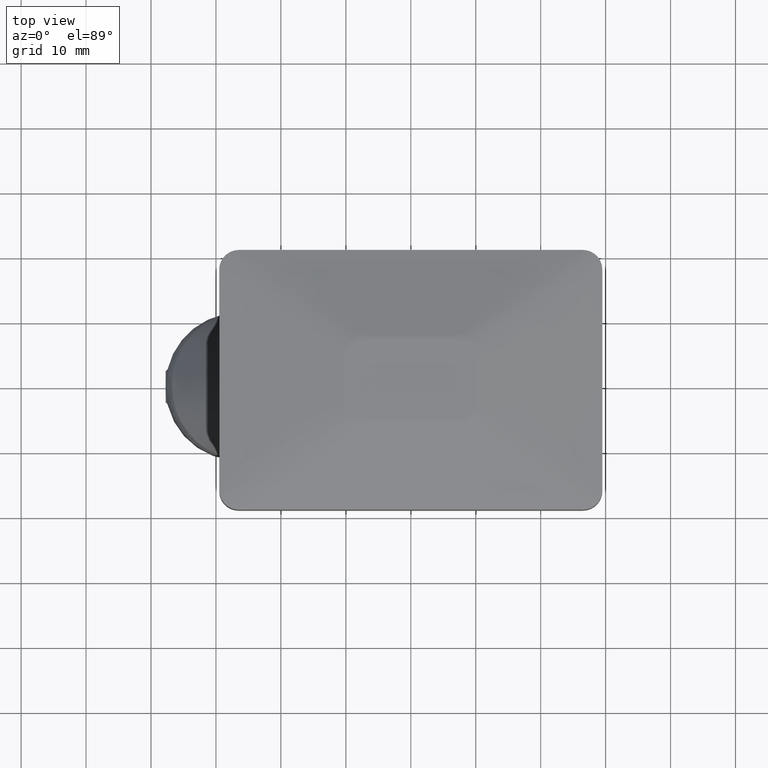
[diagram: clean part render]
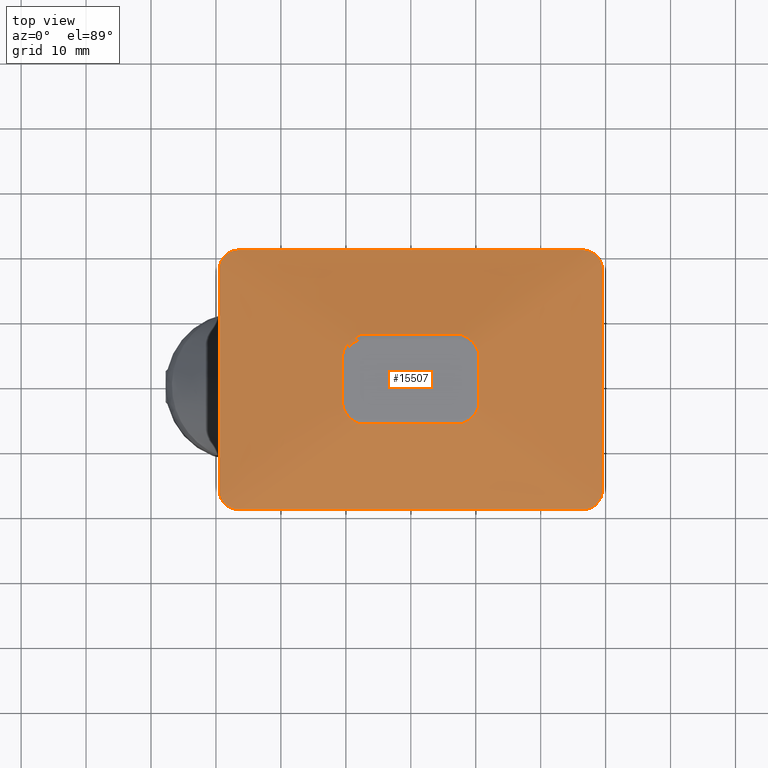
[diagram: same view with one face highlighted and labeled with its STEP entity id]
A machine part, top view. The second image highlights one B-rep face of the part: STEP entity #15507.
In plain terms, the highlighted face is a freeform B-spline surface patch.
Its self-contained STEP definition (entity closure, byte-faithful):
#20 = CARTESIAN_POINT ( 'NONE',  ( 10.51614648335154278, 3.500000000015542234, 13.95160973029972062 ) ) ;
#35 = CARTESIAN_POINT ( 'NONE',  ( 27.58535312371454395, 19.80070961837484234, 10.50000000000000888 ) ) ;
#59 = CARTESIAN_POINT ( 'NONE',  ( -10.51614648335155877, -3.686648182740845936, 13.95160973029972240 ) ) ;
#100 = CARTESIAN_POINT ( 'NONE',  ( 13.94038235332103071, 20.00000000000001421, 10.49999999999999822 ) ) ;
#160 = CARTESIAN_POINT ( 'NONE',  ( 28.02904328190679806, 19.82568928839145883, 10.46499999999999986 ) ) ;
#193 = CARTESIAN_POINT ( 'NONE',  ( 29.49999999999999645, -16.99999999999998934, 10.50000000000000000 ) ) ;
#199 = ORIENTED_EDGE ( 'NONE', *, *, #15789, .T. ) ;
#222 = CARTESIAN_POINT ( 'NONE',  ( -28.02904328190670924, 19.82568928839145883, 10.46499999999999098 ) ) ;
#260 = LINE ( 'NONE', #8026, #1119 ) ;
#286 = CARTESIAN_POINT ( 'NONE',  ( 29.65828521052497280, 17.62243977793708183, 10.46500000000002828 ) ) ;
#331 = CARTESIAN_POINT ( 'NONE',  ( 28.00533753672261739, 19.60246378587305571, 10.49997073623414856 ) ) ;
#341 = CARTESIAN_POINT ( 'NONE',  ( 29.39104710402942189, 17.82689361139919981, 10.49999999999996625 ) ) ;
#386 = CARTESIAN_POINT ( 'NONE',  ( 27.83084604247082794, 19.69573359957927394, 10.49998300734240431 ) ) ;
#557 = ORIENTED_EDGE ( 'NONE', *, *, #11233, .T. ) ;
#591 = CARTESIAN_POINT ( 'NONE',  ( -29.49999999999999645, 20.00000000000000355, 10.50000000000000000 ) ) ;
#627 = CARTESIAN_POINT ( 'NONE',  ( -29.49999999999998224, -17.19808138155498156, 10.50000000000000355 ) ) ;
#633 = CARTESIAN_POINT ( 'NONE',  ( 29.69250000000003809, -8.326672684688674053E-16, 10.46500000000001229 ) ) ;
#685 = CARTESIAN_POINT ( 'NONE',  ( -28.76034145859576441, -18.98220006469013654, 10.50000059817972087 ) ) ;
#692 = CARTESIAN_POINT ( 'NONE',  ( 7.250000000208225437, -6.870321606938620818, 13.90399069449739855 ) ) ;
#694 = CARTESIAN_POINT ( 'NONE',  ( 29.50000000000000355, 17.20803548581994491, 10.50000000000000000 ) ) ;
#752 = CARTESIAN_POINT ( 'NONE',  ( 10.24999999999999822, -3.562940898141949475, 14.00000000000000178 ) ) ;
#753 = CARTESIAN_POINT ( 'NONE',  ( -29.10246379692707208, 18.50533751803812521, 10.49996642921880685 ) ) ;
#767 = CARTESIAN_POINT ( 'NONE',  ( -26.89219888299689742, -20.13499999999999801, 10.46499999999999986 ) ) ;
#805 = CARTESIAN_POINT ( 'NONE',  ( -26.49999999877000434, -19.99999999999999645, 10.50000000000000000 ) ) ;
#806 = CARTESIAN_POINT ( 'NONE',  ( -28.00184694928726969, 19.60438959727366992, 10.49997049328662513 ) ) ;
#817 = CARTESIAN_POINT ( 'NONE',  ( -27.16753845935150835, -20.10301741226220074, 10.46499999999998565 ) ) ;
#869 = EDGE_CURVE ( 'NONE', #11493, #8907, #1339, .T. ) ;
#917 = CARTESIAN_POINT ( 'NONE',  ( -10.45701717760006666, -4.051792858772394368, 13.95864794304039869 ) ) ;
#1002 = CARTESIAN_POINT ( 'NONE',  ( -26.69249999876179658, -20.13499999999999801, 10.46499999999999986 ) ) ;
#1004 = CARTESIAN_POINT ( 'NONE',  ( -10.29749544096200076, 4.583026426619335680, 13.96457309624481269 ) ) ;
#1013 = CARTESIAN_POINT ( 'NONE',  ( 8.195201803382502703, -6.673454785539965073, 13.93915178395220522 ) ) ;
#1038 = CARTESIAN_POINT ( 'NONE',  ( -10.51614648335155167, 3.561326308650702099, 13.95160973029972062 ) ) ;
#1055 = CARTESIAN_POINT ( 'NONE',  ( 28.44324561994734424, -19.28944157043884644, 10.49999999999997513 ) ) ;
#1070 = CARTESIAN_POINT ( 'NONE',  ( -29.29382025771129960, 18.10271407931417897, 10.50000000000001954 ) ) ;
#1072 = CARTESIAN_POINT ( 'NONE',  ( -9.500807926380813839, 5.814714875461391763, 13.96610151572288494 ) ) ;
#1119 = VECTOR ( 'NONE', #16402, 1000.000000000000000 ) ;
#1128 = CARTESIAN_POINT ( 'NONE',  ( -10.51614648335153746, 2.835294738980189244, 13.95160973029972418 ) ) ;
#1133 = CARTESIAN_POINT ( 'NONE',  ( -29.49999999999999645, 14.60610953366217402, 10.50000000000000000 ) ) ;
#1155 = CARTESIAN_POINT ( 'NONE',  ( -6.038246494807627762, 6.870321606938596837, 13.90399069449740210 ) ) ;
#1203 = CARTESIAN_POINT ( 'NONE',  ( -29.11434839551554887, 18.91131159671072837, 10.46500000000000874 ) ) ;
#1270 = CARTESIAN_POINT ( 'NONE',  ( -29.49999999999999645, 17.20803548581995202, 10.50000000000000178 ) ) ;
#1328 = CARTESIAN_POINT ( 'NONE',  ( -9.817136585034660357, -5.066733958576590702, 14.00000000000000533 ) ) ;
#1330 = ORIENTED_EDGE ( 'NONE', *, *, #3651, .T. ) ;
#1339 = B_SPLINE_CURVE_WITH_KNOTS ( 'NONE', 3,
 ( #4136, #6845, #9646, #5238, #15029, #1128, #5496 ),
 .UNSPECIFIED., .F., .F.,
 ( 4, 1, 1, 1, 4 ),
 ( 0.000000000000000000, 0.001672831525153820227, 0.003500000000013304968, 0.005327168474872787975, 0.007000000000001988139 ),
 .UNSPECIFIED. ) ;
#1341 = CARTESIAN_POINT ( 'NONE',  ( 7.778051179832360162, 6.870321606938635028, 13.90399069449739677 ) ) ;
#1386 = CARTESIAN_POINT ( 'NONE',  ( 3.459515032645552157, 6.499999999999991118, 14.00000000000000178 ) ) ;
#1446 = CARTESIAN_POINT ( 'NONE',  ( -8.673617379884035472E-15, 6.500000000000002665, 13.99999999999999822 ) ) ;
#1457 = CARTESIAN_POINT ( 'NONE',  ( 9.377340536705441210, 5.951774815674125918, 13.96554720269138805 ) ) ;
#1507 = CARTESIAN_POINT ( 'NONE',  ( -28.80814157080173032, 19.26636187078366191, 10.46500000000001585 ) ) ;
#1508 = B_SPLINE_CURVE_WITH_KNOTS ( 'NONE', 3,
 ( #2312, #1038, #17969, #9562 ),
 .UNSPECIFIED., .F., .F.,
 ( 4, 4 ),
 ( 0.000000000000000000, 0.0001866481827543856054 ),
 .UNSPECIFIED. ) ;
#1564 = CARTESIAN_POINT ( 'NONE',  ( 28.05393667263505719, 19.56985720679469054, 10.49999999999999112 ) ) ;
#1590 = CARTESIAN_POINT ( 'NONE',  ( -7.778051179832424111, -6.870321606938685655, 13.90399069449740210 ) ) ;
#1596 = EDGE_CURVE ( 'NONE', #1850, #11156, #5454, .T. ) ;
#1623 = CARTESIAN_POINT ( 'NONE',  ( -28.61589216430215998, 19.13114980091777895, 10.50000000000001599 ) ) ;
#1679 = CARTESIAN_POINT ( 'NONE',  ( 9.978668691484992692, 4.759784722597583340, 14.00000000000000888 ) ) ;
#1692 = EDGE_LOOP ( 'NONE', ( #15264, #6156, #14383, #9117, #199, #13520, #7454, #8706 ) ) ;
#1729 = CARTESIAN_POINT ( 'NONE',  ( 27.28982375665588123, 19.92039410834660984, 10.49992657500753523 ) ) ;
#1777 = B_SPLINE_CURVE_WITH_KNOTS ( 'NONE', 3,
 ( #4829, #17617, #14016, #14914, #1004, #11222, #8387, #3832, #4216, #1072, #5247, #5114, #7883, #13647, #6585, #7942, #13711, #18189, #9785, #16383 ),
 .UNSPECIFIED., .F., .F.,
 ( 4, 2, 2, 2, 2, 2, 2, 2, 2, 4 ),
 ( -5.999999999393575490E-08, 0.0005528447265315223702, 0.001105749453063038529, 0.001658654179594554580, 0.002211558906126071065, 0.002764463632657587332, 0.003317368359189103166, 0.003870273085720619434, 0.004146725448986378869, 0.004423177812252137436 ),
 .UNSPECIFIED. ) ;
#1784 = CARTESIAN_POINT ( 'NONE',  ( 28.48381569220205023, 19.25892361652124762, 10.50000690007714965 ) ) ;
#1850 = VERTEX_POINT ( 'NONE', #14887 ) ;
#1960 = CARTESIAN_POINT ( 'NONE',  ( 28.76034145859578928, 18.98220006469014010, 10.50000059817972620 ) ) ;
#1985 = CARTESIAN_POINT ( 'NONE',  ( 28.96704509872215283, 19.09564322183070217, 10.46499999999999808 ) ) ;
#2017 = EDGE_CURVE ( 'NONE', #13008, #17168, #260, .T. ) ;
#2036 = CARTESIAN_POINT ( 'NONE',  ( 10.25000000000000000, 2.775731179173909879, 14.00000000000000178 ) ) ;
#2081 = LINE ( 'NONE', #2348, #14376 ) ;
#2083 = CARTESIAN_POINT ( 'NONE',  ( -10.14777205159724360, -4.920371161278551675, 13.96645538940600062 ) ) ;
#2087 = CARTESIAN_POINT ( 'NONE',  ( -26.49999999999999289, -19.99999999999999645, 10.50000000000000000 ) ) ;
#2094 = CARTESIAN_POINT ( 'NONE',  ( 29.24985110474854011, -18.70972815272521927, 10.46499999999998565 ) ) ;
#2096 = CARTESIAN_POINT ( 'NONE',  ( -28.88310988504068888, 18.83293375039869133, 10.50001724996376495 ) ) ;
#2120 = B_SPLINE_CURVE_WITH_KNOTS ( 'NONE', 3,
 ( #11313, #12880, #14288, #16925 ),
 .UNSPECIFIED., .F., .F.,
 ( 4, 4 ),
 ( 1.301042606982605321E-18, 0.0001866481827679350967 ),
 .UNSPECIFIED. ) ;
#2148 = CARTESIAN_POINT ( 'NONE',  ( 29.65828521052491595, -17.62243977793703564, 10.46499999999999631 ) ) ;
#2202 = CARTESIAN_POINT ( 'NONE',  ( -29.49999999999998579, -17.00000000000000000, 10.50000000000000000 ) ) ;
#2207 = CARTESIAN_POINT ( 'NONE',  ( 3.330991923351933259E-16, -6.870321606938616377, 13.90399069449740743 ) ) ;
#2209 = CARTESIAN_POINT ( 'NONE',  ( -7.249999999590516886, -6.500000000000000888, 13.99999999999999822 ) ) ;
#2221 = CARTESIAN_POINT ( 'NONE',  ( -27.50607517522832168, -20.02972723971762292, 10.46500000000001585 ) ) ;
#2278 = VERTEX_POINT ( 'NONE', #10209 ) ;
#2279 = CARTESIAN_POINT ( 'NONE',  ( -28.45103757922995058, -19.56968016773251762, 10.46500000000000519 ) ) ;
#2312 = CARTESIAN_POINT ( 'NONE',  ( -10.51614648335154278, 3.499999999986441956, 13.95160973029971707 ) ) ;
#2319 = B_SPLINE_CURVE_WITH_KNOTS ( 'NONE', 3,
 ( #11653, #8579, #9996, #1590 ),
 .UNSPECIFIED., .F., .F.,
 ( 4, 4 ),
 ( 0.000000000000000000, 0.0005280511800579380452 ),
 .UNSPECIFIED. ) ;
#2320 = CARTESIAN_POINT ( 'NONE',  ( -10.49118994006375694, -3.870033414210490186, 13.95614728362476953 ) ) ;
#2327 = CARTESIAN_POINT ( 'NONE',  ( 9.135669631173854555, -5.842077038832965030, 14.00000000000000533 ) ) ;
#2337 = CARTESIAN_POINT ( 'NONE',  ( -9.390951514345106332, -5.609942814329510696, 13.99999999999999289 ) ) ;
#2346 = CARTESIAN_POINT ( 'NONE',  ( 8.610887883821922273, -6.471824005654589484, 13.95391639587978894 ) ) ;
#2348 = CARTESIAN_POINT ( 'NONE',  ( 29.49999999999999645, 20.00000000000000355, 10.50000000000000000 ) ) ;
#2352 = B_SPLINE_CURVE_WITH_KNOTS ( 'NONE', 3,
 ( #3564, #10437, #11846, #7685 ),
 .UNSPECIFIED., .F., .F.,
 ( 4, 4 ),
 ( -6.000000000051103344E-08, 0.0005279911798079231153 ),
 .UNSPECIFIED. ) ;
#2360 = CARTESIAN_POINT ( 'NONE',  ( 7.249999999999982236, 6.870321606938597725, 13.90399069449740210 ) ) ;
#2361 = CARTESIAN_POINT ( 'NONE',  ( -3.589775825585864943, 6.870321606938595060, 13.90399069449740921 ) ) ;
#2375 = CARTESIAN_POINT ( 'NONE',  ( 7.250000000208225437, -6.870321606938620818, 13.90399069449739855 ) ) ;
#2406 = CARTESIAN_POINT ( 'NONE',  ( -7.688643871501186666, -6.470926055199828220, 13.99999999999998757 ) ) ;
#2456 = CARTESIAN_POINT ( 'NONE',  ( 27.58535312371462211, -19.80070961837485655, 10.50000000000000355 ) ) ;
#2470 = CARTESIAN_POINT ( 'NONE',  ( -29.37406758738367074, 18.49018089189548419, 10.46499999999997854 ) ) ;
#2473 = CARTESIAN_POINT ( 'NONE',  ( -7.250000000024323654, 6.870321606938595060, 13.90399069449739144 ) ) ;
#2483 = B_SPLINE_CURVE_WITH_KNOTS ( 'NONE', 3,
 ( #11901, #11791, #6206, #15885, #13253, #3384, #9140, #4857, #13197, #16110, #17414, #7511, #2083, #9016, #14644, #917, #2320, #17716 ),
 .UNSPECIFIED., .F., .F.,
 ( 4, 2, 2, 2, 2, 2, 2, 2, 4 ),
 ( -5.999999990178133633E-08, 0.0002776368014205754064, 0.0005553336028410526615, 0.001110727205682006738, 0.002221514411363916842, 0.002776908014204872762, 0.003332301617045828682, 0.003887695219886784601, 0.004443088822727740521 ),
 .UNSPECIFIED. ) ;
#2528 = CARTESIAN_POINT ( 'NONE',  ( -29.69249999999999190, 17.34448643169673332, 10.46500000000000163 ) ) ;
#2548 = CARTESIAN_POINT ( 'NONE',  ( -8.435689385358908567E-15, 6.870321606938599501, 13.90399069449739855 ) ) ;
#2576 = CARTESIAN_POINT ( 'NONE',  ( 7.778051179832297990, -6.870321606938600389, 13.90399069449740210 ) ) ;
#2586 = EDGE_CURVE ( 'NONE', #10076, #10387, #2352, .T. ) ;
#2594 = CARTESIAN_POINT ( 'NONE',  ( -29.69249999999998835, -14.72441331720704838, 10.46499999999999986 ) ) ;
#2655 = CARTESIAN_POINT ( 'NONE',  ( -29.29382025771122855, -18.10271407931417897, 10.50000000000000533 ) ) ;
#2659 = ORIENTED_EDGE ( 'NONE', *, *, #17515, .T. ) ;
#2692 = EDGE_CURVE ( 'NONE', #2278, #11307, #8014, .T. ) ;
#2711 = VERTEX_POINT ( 'NONE', #16361 ) ;
#2712 = CARTESIAN_POINT ( 'NONE',  ( -9.978668691485001574, -4.759784722597593998, 14.00000000000000533 ) ) ;
#2726 = CARTESIAN_POINT ( 'NONE',  ( 7.939869813536710730, 6.781549172965333661, 13.92425103382384144 ) ) ;
#2775 = CARTESIAN_POINT ( 'NONE',  ( 14.04519102652778528, 20.13500000000001222, 10.46499999999999808 ) ) ;
#2840 = CARTESIAN_POINT ( 'NONE',  ( 7.952492866250420178, 6.421517246623369424, 13.99999999999999822 ) ) ;
#2855 = CARTESIAN_POINT ( 'NONE',  ( 10.14777205159717965, 4.920371161278587202, 13.96645538940600950 ) ) ;
#2877 = CARTESIAN_POINT ( 'NONE',  ( 10.51614648335154811, -3.499999999972895459, 13.95160973029971885 ) ) ;
#2908 = CARTESIAN_POINT ( 'NONE',  ( -14.04519102652776752, 20.13500000000002998, 10.46499999999999808 ) ) ;
#2950 = EDGE_CURVE ( 'NONE', #17168, #5162, #4608, .T. ) ;
#2968 = CARTESIAN_POINT ( 'NONE',  ( 28.24898341434759175, 19.70345302372043150, 10.46499999999999098 ) ) ;
#3030 = CARTESIAN_POINT ( 'NONE',  ( -27.16753845935153322, 20.10301741226219718, 10.46500000000000519 ) ) ;
#3078 = CARTESIAN_POINT ( 'NONE',  ( -10.51614648335155877, -3.686648182740845936, 13.95160973029972240 ) ) ;
#3095 = CARTESIAN_POINT ( 'NONE',  ( 29.05904731847856226, 18.57160990094177677, 10.50000000000001599 ) ) ;
#3139 = CARTESIAN_POINT ( 'NONE',  ( 26.49999999999999289, -20.00000000000000000, 10.50000000000000000 ) ) ;
#3140 = CARTESIAN_POINT ( 'NONE',  ( 29.10438960362555960, 18.50184693846909312, 10.49996674812802411 ) ) ;
#3195 = CARTESIAN_POINT ( 'NONE',  ( 29.40446164923059769, 17.77605507519179895, 10.49993946940712242 ) ) ;
#3200 = ORIENTED_EDGE ( 'NONE', *, *, #4589, .T. ) ;
#3222 = EDGE_CURVE ( 'NONE', #12865, #10018, #9298, .T. ) ;
#3246 = CARTESIAN_POINT ( 'NONE',  ( 27.82960703193121788, -19.69643648202955788, 10.49998046006514940 ) ) ;
#3288 = VERTEX_POINT ( 'NONE', #3078 ) ;
#3320 = EDGE_CURVE ( 'NONE', #10018, #4467, #2120, .T. ) ;
#3384 = CARTESIAN_POINT ( 'NONE',  ( -8.447507740766191375, -6.557085278868520994, 13.94973128657435346 ) ) ;
#3394 = CARTESIAN_POINT ( 'NONE',  ( 29.18323882769004385, 18.35120740455196753, 10.49999999999998224 ) ) ;
#3424 = CARTESIAN_POINT ( 'NONE',  ( 27.46646368735224897, -19.84685308753550359, 10.49994745079014713 ) ) ;
#3441 = ORIENTED_EDGE ( 'NONE', *, *, #3320, .T. ) ;
#3453 = CARTESIAN_POINT ( 'NONE',  ( 29.48497529416778207, -18.24201267386241199, 10.46499999999998209 ) ) ;
#3513 = CARTESIAN_POINT ( 'NONE',  ( 29.69249999999999545, 14.72441331720705904, 10.46499999999999986 ) ) ;
#3564 = CARTESIAN_POINT ( 'NONE',  ( -7.778051179832247364, 6.870321606938555092, 13.90399069449740921 ) ) ;
#3568 = CARTESIAN_POINT ( 'NONE',  ( 29.46608535734959489, 17.48454917857872459, 10.50000000000002842 ) ) ;
#3651 = EDGE_CURVE ( 'NONE', #10387, #1850, #12117, .T. ) ;
#3691 = CARTESIAN_POINT ( 'NONE',  ( 7.688643871501173344, -6.470926055199833549, 14.00000000000001243 ) ) ;
#3726 = CARTESIAN_POINT ( 'NONE',  ( -7.249999999774486170, -6.870321606938573744, 13.90399069449740921 ) ) ;
#3756 = CARTESIAN_POINT ( 'NONE',  ( 28.63632137983507775, -19.42391521575490643, 10.46499999999997499 ) ) ;
#3815 = CARTESIAN_POINT ( 'NONE',  ( 27.50607517522828971, -20.02972723971763713, 10.46500000000000519 ) ) ;
#3832 = CARTESIAN_POINT ( 'NONE',  ( -9.862040576862659336, 5.391621883313966634, 13.96741555206708085 ) ) ;
#3882 = CARTESIAN_POINT ( 'NONE',  ( 26.69837551767355066, -19.99999999999999289, 10.50000000000000000 ) ) ;
#3895 = CARTESIAN_POINT ( 'NONE',  ( -29.05904731847856937, 18.57160990094178388, 10.50000000000001599 ) ) ;
#3954 = EDGE_CURVE ( 'NONE', #5162, #14192, #6841, .T. ) ;
#3962 = CARTESIAN_POINT ( 'NONE',  ( -29.18323882769004740, 18.35120740455196398, 10.49999999999997868 ) ) ;
#3972 = CARTESIAN_POINT ( 'NONE',  ( -26.50000000000000355, 20.00000000000000711, 10.50000000000000178 ) ) ;
#4021 = CARTESIAN_POINT ( 'NONE',  ( -29.69249999999993861, 9.417108810869782687, 10.46499999999998032 ) ) ;
#4081 = CARTESIAN_POINT ( 'NONE',  ( -29.69249999999998479, -17.34448643169672977, 10.46499999999999808 ) ) ;
#4086 = VERTEX_POINT ( 'NONE', #6763 ) ;
#4093 = CARTESIAN_POINT ( 'NONE',  ( 9.087340387652838913, 6.189473570407786340, 13.96276527139202805 ) ) ;
#4136 = CARTESIAN_POINT ( 'NONE',  ( -10.51614648335153213, -3.500000000015545787, 13.95160973029972418 ) ) ;
#4142 = CARTESIAN_POINT ( 'NONE',  ( -29.50000000000004974, -2.602085213965210642E-15, 10.50000000000001421 ) ) ;
#4161 = B_SPLINE_CURVE_WITH_KNOTS ( 'NONE', 3,
 ( #692, #6333, #16182, #2207, #17602, #7867, #9270 ),
 .UNSPECIFIED., .F., .F.,
 ( 4, 1, 1, 1, 4 ),
 ( 0.000000000000000000, 0.003381488952335007063, 0.007250000000193085499, 0.01111851104805116480, 0.01449999999998271248 ),
 .UNSPECIFIED. ) ;
#4204 = CARTESIAN_POINT ( 'NONE',  ( -22.64984645548630837, 20.13500000000000512, 10.46499999999999986 ) ) ;
#4216 = CARTESIAN_POINT ( 'NONE',  ( -9.748420955253918052, 5.539530753848864286, 13.96720863740812035 ) ) ;
#4269 = CARTESIAN_POINT ( 'NONE',  ( -28.05393667263514601, 19.56985720679467988, 10.50000000000000000 ) ) ;
#4287 = CARTESIAN_POINT ( 'NONE',  ( 10.06144478057180081, 5.082741715216962497, 13.96700287339520408 ) ) ;
#4318 = CARTESIAN_POINT ( 'NONE',  ( 10.51614648335153390, -2.835294738972545137, 13.95160973029972418 ) ) ;
#4333 = CARTESIAN_POINT ( 'NONE',  ( -26.69837551767354711, 20.00000000000000711, 10.50000000000000178 ) ) ;
#4370 = CARTESIAN_POINT ( 'NONE',  ( 28.75892362503194732, -18.98381568267265251, 10.50000102245786238 ) ) ;
#4397 = CARTESIAN_POINT ( 'NONE',  ( 26.69837551767355066, 20.00000000000000711, 10.50000000000000178 ) ) ;
#4442 = CARTESIAN_POINT ( 'NONE',  ( 10.51614648335153035, -1.657987919938978427, 13.95160973029971707 ) ) ;
#4460 = CARTESIAN_POINT ( 'NONE',  ( -5.913123528040959975, 6.499999999999999112, 14.00000000000000178 ) ) ;
#4467 = VERTEX_POINT ( 'NONE', #12590 ) ;
#4510 = CARTESIAN_POINT ( 'NONE',  ( 28.33293376233073957, 19.38310987559426479, 10.50002039808559218 ) ) ;
#4522 = CARTESIAN_POINT ( 'NONE',  ( 10.24610003981167949, 3.695489242742754588, 14.00000000000000178 ) ) ;
#4537 = B_SPLINE_CURVE_WITH_KNOTS ( 'NONE', 3,
 ( #13148, #15776, #14838, #7932, #14655, #5042, #806, #16185, #7870, #6449, #2096, #753, #14715, #10630, #9273, #17663 ),
 .UNSPECIFIED., .F., .F.,
 ( 4, 2, 2, 2, 2, 2, 2, 4 ),
 ( 3.469446951953614189E-18, 0.0005858097322723964349, 0.001171619464544789400, 0.001757429196817182366, 0.002343238929089575331, 0.002929048661361968297, 0.003514858393634361262, 0.004686477858179147193 ),
 .UNSPECIFIED. ) ;
#4566 = ORIENTED_EDGE ( 'NONE', *, *, #2586, .T. ) ;
#4589 = EDGE_CURVE ( 'NONE', #6819, #3288, #2483, .T. ) ;
#4608 = B_SPLINE_CURVE_WITH_KNOTS ( 'NONE', 3,
 ( #2202, #627, #13373, #13433, #10375, #11848, #7805, #7622, #685, #4800, #9141, #4974, #9204, #10502, #17416, #2087 ),
 .UNSPECIFIED., .F., .F.,
 ( 4, 2, 2, 2, 2, 2, 2, 4 ),
 ( 0.000000000000000000, 0.0005858097254152913819, 0.001171619450830582764, 0.001757429176245874037, 0.002343238901661165528, 0.002929048627076456801, 0.003514858352491748075, 0.004686477803322326718 ),
 .UNSPECIFIED. ) ;
#4650 = CARTESIAN_POINT ( 'NONE',  ( 26.50000000000000000, 20.00000000000000355, 10.50000000000000000 ) ) ;
#4710 = ORIENTED_EDGE ( 'NONE', *, *, #15280, .T. ) ;
#4776 = CARTESIAN_POINT ( 'NONE',  ( 26.69808138404088282, -20.00000000000000000, 10.50000000000000000 ) ) ;
#4800 = CARTESIAN_POINT ( 'NONE',  ( -28.48381569220201825, -19.25892361652124407, 10.50000690007713189 ) ) ;
#4809 = CARTESIAN_POINT ( 'NONE',  ( 10.24999999999999112, 1.599001283148689723, 13.99999999999998224 ) ) ;
#4829 = CARTESIAN_POINT ( 'NONE',  ( -10.51614648335153568, 3.686648182740827728, 13.95160973029972418 ) ) ;
#4841 = CARTESIAN_POINT ( 'NONE',  ( 29.42039411214239664, -17.78982374298997371, 10.49996766324885122 ) ) ;
#4857 = CARTESIAN_POINT ( 'NONE',  ( -9.087340387652773188, -6.189473570407647784, 13.96276527139202983 ) ) ;
#4867 = CARTESIAN_POINT ( 'NONE',  ( 10.10036285832802783, -4.453858670199914549, 14.00000000000000000 ) ) ;
#4887 = EDGE_CURVE ( 'NONE', #3288, #11493, #7111, .T. ) ;
#4927 = CARTESIAN_POINT ( 'NONE',  ( 29.69249999999996348, -9.417108810869761371, 10.46499999999998920 ) ) ;
#4974 = CARTESIAN_POINT ( 'NONE',  ( -28.00533753672261383, -19.60246378587305571, 10.49997073623413968 ) ) ;
#4982 = CARTESIAN_POINT ( 'NONE',  ( 3.459515032645549493, -6.500000000000009770, 13.99999999999998934 ) ) ;
#5041 = CARTESIAN_POINT ( 'NONE',  ( 7.316038985338548351, -6.500000000000003553, 14.00000000000000178 ) ) ;
#5042 = CARTESIAN_POINT ( 'NONE',  ( -27.82960703193122498, 19.69643648202957564, 10.49998046006515651 ) ) ;
#5043 = ORIENTED_EDGE ( 'NONE', *, *, #2692, .T. ) ;
#5054 = CARTESIAN_POINT ( 'NONE',  ( -27.78168172628913624, -19.93450154209233816, 10.46499999999997499 ) ) ;
#5100 = CARTESIAN_POINT ( 'NONE',  ( 9.390951514345092122, -5.609942814329508032, 13.99999999999999112 ) ) ;
#5111 = CARTESIAN_POINT ( 'NONE',  ( -7.778051179832424111, -6.870321606938685655, 13.90399069449740210 ) ) ;
#5114 = CARTESIAN_POINT ( 'NONE',  ( -9.082531807535987767, 6.176284633597522777, 13.96208649374302979 ) ) ;
#5123 = CARTESIAN_POINT ( 'NONE',  ( 9.367567614960440991, -5.941998688579731791, 13.96520850568120764 ) ) ;
#5161 = CARTESIAN_POINT ( 'NONE',  ( 27.16753845935155098, -20.10301741226217587, 10.46499999999999986 ) ) ;
#5162 = VERTEX_POINT ( 'NONE', #8454 ) ;
#5238 = CARTESIAN_POINT ( 'NONE',  ( -10.51614648335151436, -4.636607750148884510E-16, 13.95160973029973839 ) ) ;
#5247 = CARTESIAN_POINT ( 'NONE',  ( -9.367567614960440991, 5.941998688579842813, 13.96520850568118810 ) ) ;
#5274 = CARTESIAN_POINT ( 'NONE',  ( -29.49999999999998579, -17.00000000000000000, 10.50000000000000000 ) ) ;
#5315 = CARTESIAN_POINT ( 'NONE',  ( -29.69249999999993861, -9.417108810869764923, 10.46499999999998742 ) ) ;
#5378 = CARTESIAN_POINT ( 'NONE',  ( -9.978668691484990916, 4.759784722597590445, 14.00000000000000178 ) ) ;
#5420 = CARTESIAN_POINT ( 'NONE',  ( 10.51614648335153213, 2.835294738996747110, 13.95160973029972062 ) ) ;
#5428 = EDGE_CURVE ( 'NONE', #11307, #11691, #4161, .T. ) ;
#5441 = CARTESIAN_POINT ( 'NONE',  ( -29.18323882769012556, -18.35120740455196753, 10.49999999999999112 ) ) ;
#5454 = B_SPLINE_CURVE_WITH_KNOTS ( 'NONE', 3,
 ( #2360, #9483, #16400, #12060 ),
 .UNSPECIFIED., .F., .F.,
 ( 4, 4 ),
 ( 1.734723475976807094E-18, 0.0005280511798323797579 ),
 .UNSPECIFIED. ) ;
#5458 = B_SPLINE_CURVE_WITH_KNOTS ( 'NONE', 3,
 ( #10534, #17568, #14737, #11933, #9172, #10776, #13523, #14857, #6473, #16268, #5123, #16326, #16389, #2346, #12179, #1013, #9780, #6723, #15230, #5562 ),
 .UNSPECIFIED., .F., .F.,
 ( 4, 2, 2, 2, 2, 2, 2, 2, 2, 4 ),
 ( -5.999999999651253500E-08, 0.0005528447265315939276, 0.001105749453063184246, 0.001658654179594774890, 0.002211558906126365100, 0.002764463632657955527, 0.003317368359189546388, 0.003870273085721136815, 0.004146725448986931378, 0.004423177812252726375 ),
 .UNSPECIFIED. ) ;
#5480 = CARTESIAN_POINT ( 'NONE',  ( 29.50000000000000000, 17.00000000000000000, 10.50000000000000178 ) ) ;
#5486 = CARTESIAN_POINT ( 'NONE',  ( 10.51614648335153213, -4.288840840308918263E-15, 13.95160973029973484 ) ) ;
#5496 = CARTESIAN_POINT ( 'NONE',  ( -10.51614648335154278, 3.499999999986441956, 13.95160973029971707 ) ) ;
#5500 = CARTESIAN_POINT ( 'NONE',  ( -10.24999999999998046, -4.336808689942017736E-16, 14.00000000000001599 ) ) ;
#5553 = CARTESIAN_POINT ( 'NONE',  ( -28.24898341434768412, 19.70345302372042084, 10.46499999999999986 ) ) ;
#5562 = CARTESIAN_POINT ( 'NONE',  ( 7.778051179832297990, -6.870321606938600389, 13.90399069449740210 ) ) ;
#5618 = CARTESIAN_POINT ( 'NONE',  ( 26.89219888299690098, 20.13500000000000867, 10.46500000000000163 ) ) ;
#5678 = CARTESIAN_POINT ( 'NONE',  ( 5.913123528040954646, 6.499999999999996447, 13.99999999999999822 ) ) ;
#5693 = CARTESIAN_POINT ( 'NONE',  ( 10.51614648335154811, 3.686648182740836166, 13.95160973029972418 ) ) ;
#5743 = CARTESIAN_POINT ( 'NONE',  ( 27.50607517522832879, 20.02972723971766200, 10.46499999999999098 ) ) ;
#5803 = CARTESIAN_POINT ( 'NONE',  ( -28.96704509872219901, 19.09564322183075191, 10.46499999999998209 ) ) ;
#5827 = EDGE_CURVE ( 'NONE', #4467, #2278, #5458, .T. ) ;
#5862 = CARTESIAN_POINT ( 'NONE',  ( 29.11434839551556308, 18.91131159671074613, 10.46499999999999986 ) ) ;
#5904 = CARTESIAN_POINT ( 'NONE',  ( 10.51614648335154811, -3.499999999972895459, 13.95160973029971885 ) ) ;
#5923 = CARTESIAN_POINT ( 'NONE',  ( 9.619669012476689929, 5.350807555032308649, 13.99999999999999822 ) ) ;
#5979 = CARTESIAN_POINT ( 'NONE',  ( 10.51614648335154811, 3.686648182740836166, 13.95160973029972418 ) ) ;
#6025 = CARTESIAN_POINT ( 'NONE',  ( 26.89616272977223232, 20.00000000000001421, 10.49999999996606803 ) ) ;
#6072 = CARTESIAN_POINT ( 'NONE',  ( 28.00184694928726259, -19.60438959727366282, 10.49997049328664467 ) ) ;
#6156 = ORIENTED_EDGE ( 'NONE', *, *, #3954, .T. ) ;
#6206 = CARTESIAN_POINT ( 'NONE',  ( -7.939869813536776455, -6.781549172965383399, 13.92425103382381835 ) ) ;
#6216 = CARTESIAN_POINT ( 'NONE',  ( 29.69249999999999545, -14.72441331720704660, 10.46499999999999986 ) ) ;
#6273 = CARTESIAN_POINT ( 'NONE',  ( 29.29382025771131026, -18.10271407931415055, 10.49999999999998224 ) ) ;
#6333 = CARTESIAN_POINT ( 'NONE',  ( 6.038246494923175334, -6.870321606938618153, 13.90399069449739322 ) ) ;
#6335 = CARTESIAN_POINT ( 'NONE',  ( 29.49999999999995026, 9.339701805644830657, 10.49999999999999645 ) ) ;
#6396 = CARTESIAN_POINT ( 'NONE',  ( 5.913123528040955534, -6.500000000000002665, 14.00000000000000000 ) ) ;
#6448 = CARTESIAN_POINT ( 'NONE',  ( 22.64984645548632258, -20.13499999999999801, 10.46499999999999986 ) ) ;
#6449 = CARTESIAN_POINT ( 'NONE',  ( -28.75892362503193667, 18.98381568267265962, 10.50000102245785527 ) ) ;
#6465 = CARTESIAN_POINT ( 'NONE',  ( -26.69837551767354711, -19.99999999999999645, 10.50000000000000000 ) ) ;
#6473 = CARTESIAN_POINT ( 'NONE',  ( 9.748420955253948250, -5.539530753848717737, 13.96720863740811680 ) ) ;
#6509 = CARTESIAN_POINT ( 'NONE',  ( 26.97236431667790058, -19.96829247305845456, 10.50000000000000000 ) ) ;
#6521 = CARTESIAN_POINT ( 'NONE',  ( -7.316038985338550127, -6.500000000000000888, 13.99999999999999822 ) ) ;
#6572 = CARTESIAN_POINT ( 'NONE',  ( 22.48413632749181446, -19.99999999999999645, 10.50000000000000000 ) ) ;
#6585 = CARTESIAN_POINT ( 'NONE',  ( -8.447084236862572482, 6.557292902726365114, 13.94971659915092133 ) ) ;
#6604 = CARTESIAN_POINT ( 'NONE',  ( 3.589775825578826129, 6.870321606938589731, 13.90399069449740033 ) ) ;
#6631 = CARTESIAN_POINT ( 'NONE',  ( 13.94038235332102182, -20.00000000000001776, 10.50000000000000711 ) ) ;
#6648 = CARTESIAN_POINT ( 'NONE',  ( -10.25000000000000355, -3.562940898141945034, 14.00000000000000000 ) ) ;
#6717 = CARTESIAN_POINT ( 'NONE',  ( -29.65828521052491240, -17.62243977793705696, 10.46499999999999631 ) ) ;
#6723 = CARTESIAN_POINT ( 'NONE',  ( 7.939352554352453240, -6.781780458043709103, 13.92421067121882317 ) ) ;
#6763 = CARTESIAN_POINT ( 'NONE',  ( 29.49999999999999645, -16.99999999999998934, 10.50000000000000000 ) ) ;
#6781 = CARTESIAN_POINT ( 'NONE',  ( -29.48497529416770035, -18.24201267386244041, 10.46500000000000519 ) ) ;
#6819 = VERTEX_POINT ( 'NONE', #5111 ) ;
#6841 = LINE ( 'NONE', #9909, #7071 ) ;
#6845 = CARTESIAN_POINT ( 'NONE',  ( -10.51614648335153568, -2.835294738996752884, 13.95160973029971885 ) ) ;
#6852 = CARTESIAN_POINT ( 'NONE',  ( -10.25000000000000178, 3.562940898141942370, 14.00000000000000178 ) ) ;
#6912 = CARTESIAN_POINT ( 'NONE',  ( -29.39104710402947873, 17.82689361139925666, 10.49999999999998224 ) ) ;
#6969 = CARTESIAN_POINT ( 'NONE',  ( -3.459515032645551269, 6.499999999999996447, 14.00000000000000711 ) ) ;
#7031 = CARTESIAN_POINT ( 'NONE',  ( 7.688643871501177784, 6.470926055199820226, 14.00000000000000000 ) ) ;
#7071 = VECTOR ( 'NONE', #12840, 1000.000000000000000 ) ;
#7073 = EDGE_CURVE ( 'NONE', #2711, #12865, #16836, .T. ) ;
#7093 = CARTESIAN_POINT ( 'NONE',  ( 26.97236431667785084, 19.96829247305846522, 10.50000000000000533 ) ) ;
#7111 = B_SPLINE_CURVE_WITH_KNOTS ( 'NONE', 3,
 ( #59, #12805, #9857, #14208 ),
 .UNSPECIFIED., .F., .F.,
 ( 4, 4 ),
 ( -5.999999999790894822E-08, 0.0001865881827253020216 ),
 .UNSPECIFIED. ) ;
#7157 = CARTESIAN_POINT ( 'NONE',  ( -28.63632137983502801, 19.42391521575493840, 10.46499999999998565 ) ) ;
#7193 = CARTESIAN_POINT ( 'NONE',  ( 29.50000000000004619, -17.39616272455419477, 10.49999999997656630 ) ) ;
#7221 = CARTESIAN_POINT ( 'NONE',  ( 28.45103757923002874, 19.56968016773243590, 10.46500000000000163 ) ) ;
#7283 = CARTESIAN_POINT ( 'NONE',  ( 29.69249999999994927, 9.417108810869791569, 10.46499999999999631 ) ) ;
#7338 = CARTESIAN_POINT ( 'NONE',  ( 10.51614648335152857, 3.623520927849196660, 13.95160973029972418 ) ) ;
#7342 = CARTESIAN_POINT ( 'NONE',  ( 10.24999999999999822, -1.599001283148690833, 13.99999999999999467 ) ) ;
#7454 = ORIENTED_EDGE ( 'NONE', *, *, #9303, .T. ) ;
#7511 = CARTESIAN_POINT ( 'NONE',  ( -10.06144478057178482, -5.082741715216883449, 13.96700287339519697 ) ) ;
#7622 = CARTESIAN_POINT ( 'NONE',  ( -28.88692571683182209, -18.82783343234239126, 10.50001562024317003 ) ) ;
#7631 = CARTESIAN_POINT ( 'NONE',  ( 29.50000000000000000, -17.20803548581994846, 10.50000000000000000 ) ) ;
#7685 = CARTESIAN_POINT ( 'NONE',  ( -7.250000000024323654, 6.870321606938595060, 13.90399069449739144 ) ) ;
#7693 = CARTESIAN_POINT ( 'NONE',  ( 29.69249999999999901, -17.34448643169672621, 10.46499999999999986 ) ) ;
#7752 = CARTESIAN_POINT ( 'NONE',  ( 9.817136585034649698, 5.066733958576584484, 14.00000000000001599 ) ) ;
#7766 = CARTESIAN_POINT ( 'NONE',  ( -26.97236431667785794, -19.96829247305847943, 10.49999999999998757 ) ) ;
#7805 = CARTESIAN_POINT ( 'NONE',  ( -29.10438960362552763, -18.50184693846907535, 10.49996674812801167 ) ) ;
#7810 = CARTESIAN_POINT ( 'NONE',  ( 28.80814157080164861, -19.26636187078367968, 10.46500000000002650 ) ) ;
#7867 = CARTESIAN_POINT ( 'NONE',  ( -6.038246494650665319, -6.870321606938617265, 13.90399069449739677 ) ) ;
#7869 = CARTESIAN_POINT ( 'NONE',  ( -13.94038235332102538, -20.00000000000001421, 10.50000000000000711 ) ) ;
#7870 = CARTESIAN_POINT ( 'NONE',  ( -28.48220007190613146, 19.26034145240950934, 10.50000654062093552 ) ) ;
#7883 = CARTESIAN_POINT ( 'NONE',  ( -8.929278177582233411, 6.283156125993635044, 13.95983050340009513 ) ) ;
#7932 = CARTESIAN_POINT ( 'NONE',  ( -27.27605508220349861, 19.90446164749448599, 10.49997662532879517 ) ) ;
#7942 = CARTESIAN_POINT ( 'NONE',  ( -8.195201803382570205, 6.673454785540121392, 13.93915178395216437 ) ) ;
#7949 = EDGE_CURVE ( 'NONE', #11156, #2711, #13786, .T. ) ;
#8014 = B_SPLINE_CURVE_WITH_KNOTS ( 'NONE', 3,
 ( #2576, #11009, #16299, #15142 ),
 .UNSPECIFIED., .F., .F.,
 ( 4, 4 ),
 ( -5.999999999704158649E-08, 0.0005279911796240753866 ),
 .UNSPECIFIED. ) ;
#8026 = CARTESIAN_POINT ( 'NONE',  ( -29.49999999999999645, 20.00000000000000355, 10.50000000000000000 ) ) ;
#8059 = CARTESIAN_POINT ( 'NONE',  ( 27.83312353223977809, -19.69214650663963440, 10.50000000000000178 ) ) ;
#8070 = CARTESIAN_POINT ( 'NONE',  ( -10.24610003981168127, -3.695489242742763469, 13.99999999999999822 ) ) ;
#8137 = CARTESIAN_POINT ( 'NONE',  ( -29.49999999999993960, -9.339701805644804011, 10.49999999999998934 ) ) ;
#8200 = CARTESIAN_POINT ( 'NONE',  ( -29.24985110474850458, 18.70972815272522283, 10.46500000000001585 ) ) ;
#8216 = CARTESIAN_POINT ( 'NONE',  ( -7.250000000024323654, 6.870321606938595060, 13.90399069449739144 ) ) ;
#8259 = CARTESIAN_POINT ( 'NONE',  ( -28.80814157080169480, -19.26636187078371165, 10.46499999999999453 ) ) ;
#8318 = CARTESIAN_POINT ( 'NONE',  ( -10.17831661206412797, 4.172854624488137709, 13.99999999999999822 ) ) ;
#8328 = CARTESIAN_POINT ( 'NONE',  ( 7.854203376625051192, 6.819382216991852985, 13.91719720300211272 ) ) ;
#8377 = CARTESIAN_POINT ( 'NONE',  ( -28.44324561994729450, 19.28944157043887841, 10.49999999999998757 ) ) ;
#8387 = CARTESIAN_POINT ( 'NONE',  ( -10.06135002171675197, 5.082799024456019943, 13.96700161120290318 ) ) ;
#8433 = CARTESIAN_POINT ( 'NONE',  ( -28.45103757922991150, 19.56968016773245367, 10.46500000000000163 ) ) ;
#8446 = CARTESIAN_POINT ( 'NONE',  ( 10.49118994011396389, 3.870033414217479706, 13.95614728361564438 ) ) ;
#8454 = CARTESIAN_POINT ( 'NONE',  ( -26.49999999999999289, -19.99999999999999645, 10.50000000000000000 ) ) ;
#8491 = CARTESIAN_POINT ( 'NONE',  ( 27.78168172628918597, 19.93450154209235237, 10.46500000000000874 ) ) ;
#8552 = CARTESIAN_POINT ( 'NONE',  ( -8.241148565548064298, 6.337868331461962157, 13.99999999999999822 ) ) ;
#8579 = CARTESIAN_POINT ( 'NONE',  ( -7.424523927015074243, -6.870321606938626147, 13.90399069449739144 ) ) ;
#8617 = CARTESIAN_POINT ( 'NONE',  ( 8.673617379884035472E-17, 20.13499999999997669, 10.46500000000000519 ) ) ;
#8674 = CARTESIAN_POINT ( 'NONE',  ( 29.48497529416778562, 18.24201267386245462, 10.46500000000002295 ) ) ;
#8706 = ORIENTED_EDGE ( 'NONE', *, *, #2017, .T. ) ;
#8711 = ORIENTED_EDGE ( 'NONE', *, *, #869, .T. ) ;
#8733 = CARTESIAN_POINT ( 'NONE',  ( 10.22330424259230419, 3.919241757867379494, 13.99999999999999645 ) ) ;
#8907 = VERTEX_POINT ( 'NONE', #15102 ) ;
#8919 = DIRECTION ( 'NONE',  ( 0.000000000000000000, 1.000000000000000000, -0.000000000000000000 ) ) ;
#8944 = CARTESIAN_POINT ( 'NONE',  ( 29.34685309180188639, 17.96646367472373385, 10.49996815114920068 ) ) ;
#8975 = VERTEX_POINT ( 'NONE', #3972 ) ;
#8978 = DIRECTION ( 'NONE',  ( -1.000000000000000000, -0.000000000000000000, -0.000000000000000000 ) ) ;
#9016 = CARTESIAN_POINT ( 'NONE',  ( -10.29721540991885753, -4.583683032692317028, 13.96457712494898473 ) ) ;
#9027 = CARTESIAN_POINT ( 'NONE',  ( 29.24985110474849392, 18.70972815272521572, 10.46500000000001585 ) ) ;
#9085 = CARTESIAN_POINT ( 'NONE',  ( 29.05904731847860134, -18.57160990094178032, 10.49999999999998757 ) ) ;
#9117 = ORIENTED_EDGE ( 'NONE', *, *, #13444, .T. ) ;
#9140 = CARTESIAN_POINT ( 'NONE',  ( -8.611709600299876755, -6.471347053677662053, 13.95393227950357229 ) ) ;
#9141 = CARTESIAN_POINT ( 'NONE',  ( -28.33293376233072181, -19.38310987559426835, 10.50002039808559218 ) ) ;
#9147 = CARTESIAN_POINT ( 'NONE',  ( 10.25000000000000000, -2.775731179173916985, 14.00000000000000178 ) ) ;
#9172 = CARTESIAN_POINT ( 'NONE',  ( 10.29749544096195990, -4.583026426619481342, 13.96457309624480736 ) ) ;
#9204 = CARTESIAN_POINT ( 'NONE',  ( -27.83084604247082083, -19.69573359957927039, 10.49998300734240964 ) ) ;
#9213 = CARTESIAN_POINT ( 'NONE',  ( 8.241148565548071403, -6.337868331461955052, 13.99999999999998579 ) ) ;
#9224 = CARTESIAN_POINT ( 'NONE',  ( -7.249999999590516886, -6.500000000000000888, 13.99999999999999822 ) ) ;
#9270 = CARTESIAN_POINT ( 'NONE',  ( -7.249999999774486170, -6.870321606938573744, 13.90399069449740921 ) ) ;
#9273 = CARTESIAN_POINT ( 'NONE',  ( -29.50000000000004263, 17.39616272455422319, 10.49999999997656808 ) ) ;
#9298 = B_SPLINE_CURVE_WITH_KNOTS ( 'NONE', 3,
 ( #20, #5420, #12455, #5486, #4442, #4318, #5904 ),
 .UNSPECIFIED., .F., .F.,
 ( 4, 1, 1, 1, 4 ),
 ( 0.000000000000000000, 0.001672831525153301978, 0.003500000000012205587, 0.005327168474871126110, 0.006999999999988437346 ),
 .UNSPECIFIED. ) ;
#9303 = EDGE_CURVE ( 'NONE', #8975, #13008, #4537, .T. ) ;
#9329 = CARTESIAN_POINT ( 'NONE',  ( 27.78168172628926413, -19.93450154209237013, 10.46500000000000341 ) ) ;
#9343 = CARTESIAN_POINT ( 'NONE',  ( -28.44324561994728384, -19.28944157043880736, 10.50000000000000355 ) ) ;
#9396 = ORIENTED_EDGE ( 'NONE', *, *, #5428, .T. ) ;
#9401 = CARTESIAN_POINT ( 'NONE',  ( -26.49999999877000434, -19.99999999999999645, 10.50000000000000000 ) ) ;
#9456 = CARTESIAN_POINT ( 'NONE',  ( 29.11434839551548492, -18.91131159671071416, 10.46500000000001762 ) ) ;
#9469 = CARTESIAN_POINT ( 'NONE',  ( -29.49999999999993960, 9.339701805644821775, 10.49999999999998046 ) ) ;
#9483 = CARTESIAN_POINT ( 'NONE',  ( 7.424523927167256510, 6.870321606938618153, 13.90399069449739500 ) ) ;
#9528 = CARTESIAN_POINT ( 'NONE',  ( -28.92328689244147455, -18.77423657059059536, 10.49999999999999112 ) ) ;
#9562 = CARTESIAN_POINT ( 'NONE',  ( -10.51614648335153568, 3.686648182740827728, 13.95160973029972418 ) ) ;
#9587 = CARTESIAN_POINT ( 'NONE',  ( -29.65828521052490530, 17.62243977793702143, 10.46500000000000519 ) ) ;
#9646 = CARTESIAN_POINT ( 'NONE',  ( -10.51614648335154278, -1.657987919950178357, 13.95160973029970641 ) ) ;
#9654 = CARTESIAN_POINT ( 'NONE',  ( -29.24985110474844774, -18.70972815272522283, 10.46500000000001229 ) ) ;
#9720 = CARTESIAN_POINT ( 'NONE',  ( -28.77548691965049343, -18.95955573998121935, 10.50000000000000888 ) ) ;
#9773 = CARTESIAN_POINT ( 'NONE',  ( 0.000000000000000000, 19.99999999999997513, 10.50000000000000533 ) ) ;
#9780 = CARTESIAN_POINT ( 'NONE',  ( 8.109656052774067092, -6.709128087584938172, 13.93518086193943795 ) ) ;
#9785 = CARTESIAN_POINT ( 'NONE',  ( -7.853861817157867797, 6.819610070799301482, 13.91713812979277343 ) ) ;
#9837 = CARTESIAN_POINT ( 'NONE',  ( -28.25701528449377520, 19.43575703251959297, 10.50000000000000178 ) ) ;
#9857 = CARTESIAN_POINT ( 'NONE',  ( -10.51614648335153746, -3.561326308670424545, 13.95160973029972062 ) ) ;
#9906 = CARTESIAN_POINT ( 'NONE',  ( 8.241148565548069627, 6.337868331461961269, 14.00000000000000178 ) ) ;
#9909 = CARTESIAN_POINT ( 'NONE',  ( -29.49999999999999289, -19.99999999999999645, 10.50000000000000000 ) ) ;
#9971 = CARTESIAN_POINT ( 'NONE',  ( 8.549262501381480917, 6.210275514220706228, 14.00000000000000533 ) ) ;
#9980 = FACE_OUTER_BOUND ( 'NONE', #15444, .T. ) ;
#9996 = CARTESIAN_POINT ( 'NONE',  ( -7.600494851110207506, -6.870321606938627035, 13.90399069449739144 ) ) ;
#10018 = VERTEX_POINT ( 'NONE', #2877 ) ;
#10031 = CARTESIAN_POINT ( 'NONE',  ( -9.390951514345116991, 5.609942814329522243, 13.99999999999999289 ) ) ;
#10064 = VERTEX_POINT ( 'NONE', #12691 ) ;
#10076 = VERTEX_POINT ( 'NONE', #14217 ) ;
#10090 = CARTESIAN_POINT ( 'NONE',  ( 10.17831661206411553, 4.172854624488138597, 13.99999999999999467 ) ) ;
#10138 = CARTESIAN_POINT ( 'NONE',  ( 29.50000000000000000, 17.00000000000000000, 10.50000000000000178 ) ) ;
#10209 = CARTESIAN_POINT ( 'NONE',  ( 7.778051179832297990, -6.870321606938600389, 13.90399069449740210 ) ) ;
#10216 = ORIENTED_EDGE ( 'NONE', *, *, #4887, .T. ) ;
#10298 = CARTESIAN_POINT ( 'NONE',  ( 27.27605508220349151, -19.90446164749447888, 10.49997662532880405 ) ) ;
#10362 = CARTESIAN_POINT ( 'NONE',  ( 28.88692571683185051, 18.82783343234239837, 10.50001562024318247 ) ) ;
#10375 = CARTESIAN_POINT ( 'NONE',  ( -29.34685309180187573, -17.96646367472373385, 10.49996815114917226 ) ) ;
#10381 = CARTESIAN_POINT ( 'NONE',  ( 28.44324561994719147, 19.28944157043888552, 10.49999999999999112 ) ) ;
#10387 = VERTEX_POINT ( 'NONE', #2473 ) ;
#10411 = CARTESIAN_POINT ( 'NONE',  ( 26.89285455285759596, -19.98057448366574818, 10.49978705926240963 ) ) ;
#10437 = CARTESIAN_POINT ( 'NONE',  ( -7.600494851198330792, 6.870321606938605719, 13.90399069449739500 ) ) ;
#10446 = CARTESIAN_POINT ( 'NONE',  ( 29.50000000000003553, -8.673617379884035472E-16, 10.50000000000001243 ) ) ;
#10502 = CARTESIAN_POINT ( 'NONE',  ( -27.28982375665588478, -19.92039410834661339, 10.49992657500749083 ) ) ;
#10510 = CARTESIAN_POINT ( 'NONE',  ( 29.69250000000000256, 17.34448643169672266, 10.46499999999999986 ) ) ;
#10534 = CARTESIAN_POINT ( 'NONE',  ( 10.51614648335153213, -3.686648182740831725, 13.95160973029972595 ) ) ;
#10572 = CARTESIAN_POINT ( 'NONE',  ( 29.46608535734953804, -17.48454917857867486, 10.49999999999999645 ) ) ;
#10588 = CARTESIAN_POINT ( 'NONE',  ( -8.241148565548066074, -6.337868331461957716, 14.00000000000000711 ) ) ;
#10629 = CARTESIAN_POINT ( 'NONE',  ( 28.77548691965056804, -18.95955573998121935, 10.49999999999998224 ) ) ;
#10630 = CARTESIAN_POINT ( 'NONE',  ( -29.42039411214240374, 17.78982374298998792, 10.49996766324890096 ) ) ;
#10642 = CARTESIAN_POINT ( 'NONE',  ( -27.30986298410230972, -19.89548168343526768, 10.50000000000001599 ) ) ;
#10692 = CARTESIAN_POINT ( 'NONE',  ( -26.69249999876179658, -20.13499999999999801, 10.46499999999999986 ) ) ;
#10703 = CARTESIAN_POINT ( 'NONE',  ( -28.25701528449381428, -19.43575703251965336, 10.50000000000000533 ) ) ;
#10753 = CARTESIAN_POINT ( 'NONE',  ( 1.226449497515602616E-14, -20.13499999999996959, 10.46499999999999275 ) ) ;
#10767 = CARTESIAN_POINT ( 'NONE',  ( -28.63632137983501735, -19.42391521575486379, 10.46500000000000341 ) ) ;
#10776 = CARTESIAN_POINT ( 'NONE',  ( 10.14766837583376891, -4.920630417817581481, 13.96645720100694810 ) ) ;
#10791 = CARTESIAN_POINT ( 'NONE',  ( 6.038246494792899099, 6.870321606938594172, 13.90399069449739855 ) ) ;
#10817 = CARTESIAN_POINT ( 'NONE',  ( 26.89219888299690098, -20.13499999999999446, 10.46499999999999986 ) ) ;
#10831 = CARTESIAN_POINT ( 'NONE',  ( -7.454950049313004534, -6.495798552686216532, 13.99999999999999467 ) ) ;
#10880 = CARTESIAN_POINT ( 'NONE',  ( 28.25701528449375388, -19.43575703251957520, 10.50000000000000888 ) ) ;
#10893 = CARTESIAN_POINT ( 'NONE',  ( -10.10036285832804737, 4.453858670199910996, 13.99999999999999112 ) ) ;
#10962 = CARTESIAN_POINT ( 'NONE',  ( -29.69249999999999190, 14.72441331720705548, 10.46499999999999986 ) ) ;
#11003 = CARTESIAN_POINT ( 'NONE',  ( 10.51614648335154278, 3.500000000015542234, 13.95160973029972062 ) ) ;
#11009 = CARTESIAN_POINT ( 'NONE',  ( 7.600494851260729767, -6.870321606938633252, 13.90399069449739500 ) ) ;
#11026 = CARTESIAN_POINT ( 'NONE',  ( -9.619669012476698811, 5.350807555032312202, 14.00000000000000533 ) ) ;
#11089 = CARTESIAN_POINT ( 'NONE',  ( -10.24610003981168305, 3.695489242742759473, 14.00000000000000355 ) ) ;
#11147 = CARTESIAN_POINT ( 'NONE',  ( -28.96704509872223099, -19.09564322183070573, 10.46500000000000874 ) ) ;
#11156 = VERTEX_POINT ( 'NONE', #12072 ) ;
#11208 = CARTESIAN_POINT ( 'NONE',  ( -7.688643871501184002, 6.470926055199824667, 14.00000000000000355 ) ) ;
#11222 = CARTESIAN_POINT ( 'NONE',  ( -10.14766837583370140, 4.920630417817458024, 13.96645720100695875 ) ) ;
#11233 = EDGE_CURVE ( 'NONE', #8907, #10064, #1508, .T. ) ;
#11269 = CARTESIAN_POINT ( 'NONE',  ( -27.58535312371457593, 19.80070961837484944, 10.50000000000001421 ) ) ;
#11283 = CARTESIAN_POINT ( 'NONE',  ( 8.447507740766047490, 6.557085278868731493, 13.94973128657429839 ) ) ;
#11304 = B_SPLINE_SURFACE_WITH_KNOTS ( 'NONE', 3, 1, ( 
 ( #9224, #9401, #1002 ),
 ( #6521, #6465, #767 ),
 ( #10831, #7766, #817 ),
 ( #2406, #10642, #2221 ),
 ( #16133, #12232, #5054 ),
 ( #10588, #16259, #17739 ),
 ( #14847, #13511, #17674 ),
 ( #14912, #10703, #2279 ),
 ( #12104, #9343, #10767 ),
 ( #2337, #18063, #8259 ),
 ( #18124, #9720, #11147 ),
 ( #1328, #9528, #16448 ),
 ( #2712, #13885, #9654 ),
 ( #15161, #5441, #15223 ),
 ( #13943, #2655, #6781 ),
 ( #15091, #15036, #12472 ),
 ( #8070, #13831, #6717 ),
 ( #6648, #16692, #4081 ),
 ( #16507, #13770, #2594 ),
 ( #12530, #8137, #5315 ),
 ( #5500, #4142, #12413 ),
 ( #16570, #9469, #4021 ),
 ( #17932, #1133, #10962 ),
 ( #6852, #1270, #2528 ),
 ( #11089, #15285, #9587 ),
 ( #12293, #6912, #17862 ),
 ( #8318, #1070, #12354 ),
 ( #10893, #3962, #2470 ),
 ( #5378, #3895, #8200 ),
 ( #13709, #17998, #1203 ),
 ( #11026, #16628, #5803 ),
 ( #10031, #1623, #1507 ),
 ( #15348, #8377, #7157 ),
 ( #15534, #9837, #8433 ),
 ( #16755, #4269, #5553 ),
 ( #8552, #12784, #222 ),
 ( #11454, #11269, #14067 ),
 ( #11208, #17000, #11393 ),
 ( #16941, #18181, #3030 ),
 ( #12838, #4333, #12722 ),
 ( #4460, #14126, #4204 ),
 ( #6969, #12658, #2908 ),
 ( #1446, #9773, #8617 ),
 ( #1386, #100, #2775 ),
 ( #5678, #12589, #14003 ),
 ( #15469, #4397, #5618 ),
 ( #16819, #7093, #15411 ),
 ( #7031, #16883, #5743 ),
 ( #2840, #35, #8491 ),
 ( #9906, #11331, #160 ),
 ( #9971, #1564, #2968 ),
 ( #14181, #15596, #7221 ),
 ( #17062, #10381, #14593 ),
 ( #14307, #14250, #13208 ),
 ( #5923, #17549, #1985 ),
 ( #7752, #11966, #5862 ),
 ( #1679, #3095, #9027 ),
 ( #17117, #3394, #11512 ),
 ( #10090, #16004, #8674 ),
 ( #8733, #341, #15707 ),
 ( #4522, #3568, #286 ),
 ( #11799, #694, #10510 ),
 ( #2036, #12898, #3513 ),
 ( #4809, #6335, #7283 ),
 ( #11910, #10446, #633 ),
 ( #7342, #13317, #4927 ),
 ( #9147, #13382, #6216 ),
 ( #752, #7631, #7693 ),
 ( #13261, #10572, #2148 ),
 ( #17487, #15651, #17424 ),
 ( #11857, #6273, #3453 ),
 ( #4867, #14654, #14713 ),
 ( #16059, #9085, #2094 ),
 ( #16119, #14837, #9456 ),
 ( #15021, #10629, #16433 ),
 ( #5100, #14957, #7810 ),
 ( #2327, #1055, #3756 ),
 ( #14899, #10880, #17604 ),
 ( #12089, #12156, #13567 ),
 ( #9213, #8059, #17849 ),
 ( #17723, #2456, #9329 ),
 ( #3691, #12282, #3815 ),
 ( #17662, #6509, #5161 ),
 ( #5041, #3882, #10817 ),
 ( #6396, #6572, #6448 ),
 ( #4982, #6631, #12220 ),
 ( #16244, #13495, #10753 ),
 ( #14772, #7869, #13437 ),
 ( #13632, #16184, #16368 ),
 ( #2209, #805, #10692 ) ),
 .UNSPECIFIED., .T., .F., .F.,
 ( 4, 1, 1, 1, 1, 1, 1, 1, 1, 1, 1, 1, 1, 1, 1, 1, 2, 1, 1, 1, 2, 1, 1, 1, 1, 1, 1, 1, 1, 1, 1, 1, 1, 1, 1, 1, 2, 1, 1, 1, 2, 1, 1, 1, 1, 1, 1, 1, 1, 1, 1, 1, 1, 1, 1, 1, 2, 1, 1, 1, 2, 1, 1, 1, 1, 1, 1, 1, 1, 1, 1, 1, 1, 1, 1, 1, 2, 1, 1, 1, 4 ),
 ( 2, 1, 2 ),
 ( 0.000000000000000000, 0.003144585120326261630, 0.006289170240652524127, 0.009433755360978790527, 0.01257834048130504825, 0.01572292560163131292, 0.01886751072195758105, 0.02201209584228383878, 0.02515668096261009651, 0.02830126608293635770, 0.03144585120326262584, 0.03459043632358888704, 0.03773502144391516211, 0.04087960656424140943, 0.04402419168456767756, 0.04716877680489393876, 0.05031336192522019995, 0.08649849765572503735, 0.1226836333862298956, 0.1588687691167347260, 0.1950539048472395842, 0.1981984899675657830, 0.2013430750878920927, 0.2044876602082183470, 0.2076322453285446290, 0.2107768304488708833, 0.2139214155691971930, 0.2170660006895234473, 0.2202105858098497015, 0.2233551709301759558, 0.2264997560505022378, 0.2296443411708284921, 0.2327889262911547463, 0.2359335114114810283, 0.2390780965318072548, 0.2422226816521335646, 0.2453672667724597911, 0.3090254500793447878, 0.3726836333862298956, 0.4363418166931149478, 0.5000000000000000000, 0.5031445851203262265, 0.5062891702406524530, 0.5094337553609787905, 0.5125783404813049060, 0.5157229256016311325, 0.5188675107219574700, 0.5220120958422838076, 0.5251566809626100341, 0.5283012660829361495, 0.5314458512032625981, 0.5345904363235889356, 0.5377350214439151621, 0.5408796065642411666, 0.5440241916845676151, 0.5471687768048939526, 0.5503133619252200681, 0.5864984976557250373, 0.6226836333862296735, 0.6588687691167346427, 0.6950539048472395010, 0.6981984899675658385, 0.7013430750878920650, 0.7044876602082181805, 0.7076322453285446290, 0.7107768304488709665, 0.7139214155691970820, 0.7170660006895233085, 0.7202105858098495350, 0.7233551709301759836, 0.7264997560505020990, 0.7296443411708283255, 0.7327889262911546631, 0.7359335114114811116, 0.7390780965318073381, 0.7422226816521334536, 0.7453672667724597911, 0.8090254500793448988, 0.8726836333862298956, 0.9363418166931148923, 1.000000000000000000 ),
 ( 0.000000000000000000, 1.000000000000000000, 1.010000000000000009 ),
 .UNSPECIFIED. ) ;
#11307 = VERTEX_POINT ( 'NONE', #2375 ) ;
#11313 = CARTESIAN_POINT ( 'NONE',  ( 10.51614648335154811, -3.499999999972895459, 13.95160973029971885 ) ) ;
#11331 = CARTESIAN_POINT ( 'NONE',  ( 27.83312353223987756, 19.69214650663968058, 10.50000000000000000 ) ) ;
#11393 = CARTESIAN_POINT ( 'NONE',  ( -27.50607517522826484, 20.02972723971766200, 10.46499999999998387 ) ) ;
#11433 = EDGE_CURVE ( 'NONE', #14192, #4086, #11513, .T. ) ;
#11454 = CARTESIAN_POINT ( 'NONE',  ( -7.952492866250419290, 6.421517246623371200, 14.00000000000000178 ) ) ;
#11493 = VERTEX_POINT ( 'NONE', #15921 ) ;
#11512 = CARTESIAN_POINT ( 'NONE',  ( 29.37406758738366719, 18.49018089189548775, 10.46499999999998209 ) ) ;
#11513 = B_SPLINE_CURVE_WITH_KNOTS ( 'NONE', 3,
 ( #16855, #4776, #10411, #10298, #3424, #3246, #6072, #12760, #14566, #4370, #14157, #13179, #13234, #4841, #7193, #193 ),
 .UNSPECIFIED., .F., .F.,
 ( 4, 2, 2, 2, 2, 2, 2, 4 ),
 ( 3.469446951953614189E-18, 0.0005858097322723981697, 0.001171619464544792870, 0.001757429196817187570, 0.002343238929089582270, 0.002929048661361976971, 0.003514858393634371671, 0.004686477858179161071 ),
 .UNSPECIFIED. ) ;
#11523 = FACE_OUTER_BOUND ( 'NONE', #1692, .T. ) ;
#11560 = CARTESIAN_POINT ( 'NONE',  ( 26.50000000000000000, 20.00000000000000355, 10.50000000000000000 ) ) ;
#11621 = CARTESIAN_POINT ( 'NONE',  ( 10.51614648335152857, 3.561326308670418328, 13.95160973029972418 ) ) ;
#11653 = CARTESIAN_POINT ( 'NONE',  ( -7.249999999774486170, -6.870321606938573744, 13.90399069449740921 ) ) ;
#11677 = ORIENTED_EDGE ( 'NONE', *, *, #5827, .T. ) ;
#11691 = VERTEX_POINT ( 'NONE', #3726 ) ;
#11791 = CARTESIAN_POINT ( 'NONE',  ( -7.854203376284271343, -6.819382216514402018, 13.91719720312592301 ) ) ;
#11799 = CARTESIAN_POINT ( 'NONE',  ( 10.24999999999999822, 3.562940898141937929, 14.00000000000000178 ) ) ;
#11846 = CARTESIAN_POINT ( 'NONE',  ( -7.424523927187606454, 6.870321606938605719, 13.90399069449739500 ) ) ;
#11848 = CARTESIAN_POINT ( 'NONE',  ( -29.19643648817315551, -18.32960701942747050, 10.49995714409344316 ) ) ;
#11857 = CARTESIAN_POINT ( 'NONE',  ( 10.17831661206411376, -4.172854624488139486, 13.99999999999999112 ) ) ;
#11901 = CARTESIAN_POINT ( 'NONE',  ( -7.778051179832424111, -6.870321606938685655, 13.90399069449740210 ) ) ;
#11910 = CARTESIAN_POINT ( 'NONE',  ( 10.24999999999999822, -4.336808689942017736E-15, 14.00000000000001243 ) ) ;
#11933 = CARTESIAN_POINT ( 'NONE',  ( 10.36094416408697683, -4.407647836882490289, 13.96296425213235715 ) ) ;
#11966 = CARTESIAN_POINT ( 'NONE',  ( 28.92328689244149587, 18.77423657059060602, 10.50000000000000000 ) ) ;
#12024 = EDGE_CURVE ( 'NONE', #12038, #8975, #15931, .T. ) ;
#12038 = VERTEX_POINT ( 'NONE', #4650 ) ;
#12060 = CARTESIAN_POINT ( 'NONE',  ( 7.778051179832360162, 6.870321606938635028, 13.90399069449739677 ) ) ;
#12072 = CARTESIAN_POINT ( 'NONE',  ( 7.778051179832360162, 6.870321606938635028, 13.90399069449739677 ) ) ;
#12089 = CARTESIAN_POINT ( 'NONE',  ( 8.549262501381500456, -6.210275514220707116, 14.00000000000000178 ) ) ;
#12104 = CARTESIAN_POINT ( 'NONE',  ( -9.135669631173859884, -5.842077038832960589, 13.99999999999998934 ) ) ;
#12117 = B_SPLINE_CURVE_WITH_KNOTS ( 'NONE', 3,
 ( #8216, #1155, #2361, #2548, #6604, #10791, #18022 ),
 .UNSPECIFIED., .F., .F.,
 ( 4, 1, 1, 1, 4 ),
 ( 0.000000000000000000, 0.003381488952164429535, 0.007250000000023054843, 0.01111851104788167538, 0.01450000000002430595 ),
 .UNSPECIFIED. ) ;
#12156 = CARTESIAN_POINT ( 'NONE',  ( 28.05393667263518509, -19.56985720679468699, 10.50000000000000178 ) ) ;
#12179 = CARTESIAN_POINT ( 'NONE',  ( 8.447084236862524520, -6.557292902726185702, 13.94971659915095685 ) ) ;
#12220 = CARTESIAN_POINT ( 'NONE',  ( 14.04519102652777462, -20.13500000000001577, 10.46500000000000696 ) ) ;
#12232 = CARTESIAN_POINT ( 'NONE',  ( -27.58535312371449422, -19.80070961837482457, 10.49999999999997513 ) ) ;
#12282 = CARTESIAN_POINT ( 'NONE',  ( 27.30986298410227775, -19.89548168343528189, 10.50000000000000533 ) ) ;
#12293 = CARTESIAN_POINT ( 'NONE',  ( -10.22330424259231485, 3.919241757867382159, 14.00000000000000888 ) ) ;
#12354 = CARTESIAN_POINT ( 'NONE',  ( -29.48497529416777141, 18.24201267386244041, 10.46500000000001940 ) ) ;
#12413 = CARTESIAN_POINT ( 'NONE',  ( -29.69250000000005230, -2.623769257414920730E-15, 10.46500000000001407 ) ) ;
#12455 = CARTESIAN_POINT ( 'NONE',  ( 10.51614648335152502, 1.657987919950177025, 13.95160973029970641 ) ) ;
#12472 = CARTESIAN_POINT ( 'NONE',  ( -29.58272453264385504, -17.96597012993453646, 10.46499999999999631 ) ) ;
#12484 = CARTESIAN_POINT ( 'NONE',  ( 8.195441535178916936, 6.673350367921329074, 13.93916337289267382 ) ) ;
#12530 = CARTESIAN_POINT ( 'NONE',  ( -10.25000000000001243, -1.599001283148690389, 13.99999999999998224 ) ) ;
#12541 = CARTESIAN_POINT ( 'NONE',  ( 10.45701717760000271, 4.051792858772438777, 13.95864794304038980 ) ) ;
#12589 = CARTESIAN_POINT ( 'NONE',  ( 22.48413632749182156, 20.00000000000000355, 10.50000000000000000 ) ) ;
#12590 = CARTESIAN_POINT ( 'NONE',  ( 10.51614648335153213, -3.686648182740831725, 13.95160973029972595 ) ) ;
#12606 = CARTESIAN_POINT ( 'NONE',  ( 9.860983751048955526, 5.393169450168063150, 13.96741628094683030 ) ) ;
#12658 = CARTESIAN_POINT ( 'NONE',  ( -13.94038235332101472, 20.00000000000003197, 10.49999999999999822 ) ) ;
#12659 = VECTOR ( 'NONE', #8978, 1000.000000000000000 ) ;
#12691 = CARTESIAN_POINT ( 'NONE',  ( -10.51614648335153568, 3.686648182740827728, 13.95160973029972418 ) ) ;
#12722 = CARTESIAN_POINT ( 'NONE',  ( -26.89219888299689742, 20.13500000000000867, 10.46500000000000163 ) ) ;
#12760 = CARTESIAN_POINT ( 'NONE',  ( 28.32783343985245494, -19.38692571095705830, 10.50001934571583107 ) ) ;
#12784 = CARTESIAN_POINT ( 'NONE',  ( -27.83312353223979230, 19.69214650663968058, 10.49999999999999112 ) ) ;
#12805 = CARTESIAN_POINT ( 'NONE',  ( -10.51614648335153923, -3.623520927849204210, 13.95160973029972062 ) ) ;
#12838 = CARTESIAN_POINT ( 'NONE',  ( -7.316038985338549239, 6.499999999999999112, 13.99999999999999822 ) ) ;
#12840 = DIRECTION ( 'NONE',  ( 1.000000000000000000, 0.000000000000000000, -0.000000000000000000 ) ) ;
#12865 = VERTEX_POINT ( 'NONE', #11003 ) ;
#12880 = CARTESIAN_POINT ( 'NONE',  ( 10.51614648335154989, -3.561326308641542759, 13.95160973029972062 ) ) ;
#12895 = VERTEX_POINT ( 'NONE', #5480 ) ;
#12898 = CARTESIAN_POINT ( 'NONE',  ( 29.50000000000000000, 14.60610953366217757, 10.50000000000000000 ) ) ;
#13008 = VERTEX_POINT ( 'NONE', #16094 ) ;
#13148 = CARTESIAN_POINT ( 'NONE',  ( -26.50000000000000355, 20.00000000000000711, 10.50000000000000178 ) ) ;
#13179 = CARTESIAN_POINT ( 'NONE',  ( 29.10246379692706498, -18.50533751803811100, 10.49996642921879086 ) ) ;
#13197 = CARTESIAN_POINT ( 'NONE',  ( -9.377340536705560226, -5.951774815674118813, 13.96554720269138805 ) ) ;
#13208 = CARTESIAN_POINT ( 'NONE',  ( 28.80814157080180493, 19.26636187078368678, 10.46500000000000874 ) ) ;
#13234 = CARTESIAN_POINT ( 'NONE',  ( 29.19573360534960926, -18.33084603083731068, 10.49996005770881524 ) ) ;
#13253 = CARTESIAN_POINT ( 'NONE',  ( -8.195441535179075032, -6.673350367921368154, 13.93916337289265961 ) ) ;
#13261 = CARTESIAN_POINT ( 'NONE',  ( 10.24610003981167949, -3.695489242742768798, 13.99999999999999645 ) ) ;
#13317 = CARTESIAN_POINT ( 'NONE',  ( 29.49999999999996447, -9.339701805644800459, 10.49999999999999112 ) ) ;
#13373 = CARTESIAN_POINT ( 'NONE',  ( -29.48057448394524371, -17.39285454972129585, 10.49982158156069723 ) ) ;
#13382 = CARTESIAN_POINT ( 'NONE',  ( 29.50000000000000000, -14.60610953366216336, 10.50000000000000000 ) ) ;
#13433 = CARTESIAN_POINT ( 'NONE',  ( -29.40446164923057637, -17.77605507519179184, 10.49993946940714196 ) ) ;
#13437 = CARTESIAN_POINT ( 'NONE',  ( -14.04519102652777818, -20.13500000000001222, 10.46500000000000696 ) ) ;
#13444 = EDGE_CURVE ( 'NONE', #4086, #12895, #2081, .T. ) ;
#13495 = CARTESIAN_POINT ( 'NONE',  ( 1.214306433183764966E-14, -19.99999999999996803, 10.49999999999999289 ) ) ;
#13511 = CARTESIAN_POINT ( 'NONE',  ( -28.05393667263507140, -19.56985720679461949, 10.49999999999998224 ) ) ;
#13520 = ORIENTED_EDGE ( 'NONE', *, *, #12024, .T. ) ;
#13523 = CARTESIAN_POINT ( 'NONE',  ( 10.06135002171673243, -5.082799024456043036, 13.96700161120291384 ) ) ;
#13567 = CARTESIAN_POINT ( 'NONE',  ( 28.24898341434771964, -19.70345302372042795, 10.46500000000000163 ) ) ;
#13632 = CARTESIAN_POINT ( 'NONE',  ( -5.913123528040959975, -6.500000000000001776, 14.00000000000000000 ) ) ;
#13647 = CARTESIAN_POINT ( 'NONE',  ( -8.610887883821867206, 6.471824005654671197, 13.95391639587978183 ) ) ;
#13686 = ORIENTED_EDGE ( 'NONE', *, *, #1596, .T. ) ;
#13709 = CARTESIAN_POINT ( 'NONE',  ( -9.817136585034647922, 5.066733958576587149, 14.00000000000001599 ) ) ;
#13711 = CARTESIAN_POINT ( 'NONE',  ( -8.109656052774244728, 6.709128087585286337, 13.93518086193935801 ) ) ;
#13770 = CARTESIAN_POINT ( 'NONE',  ( -29.49999999999999289, -14.60610953366216691, 10.50000000000000000 ) ) ;
#13786 = B_SPLINE_CURVE_WITH_KNOTS ( 'NONE', 3,
 ( #1341, #8328, #2726, #15424, #12484, #11283, #14139, #4093, #1457, #16834, #12606, #4287, #2855, #16705, #15361, #12541, #8446, #5693 ),
 .UNSPECIFIED., .F., .F.,
 ( 4, 2, 2, 2, 2, 2, 2, 2, 4 ),
 ( -5.999999990206046015E-08, 0.0002776368014204820566, 0.0005553336028408661787, 0.001110727205681634640, 0.002221514411363176549, 0.002776908014203946420, 0.003332301617044715857, 0.003887695219885485727, 0.004443088822726256465 ),
 .UNSPECIFIED. ) ;
#13831 = CARTESIAN_POINT ( 'NONE',  ( -29.46608535734953449, -17.48454917857869617, 10.49999999999999645 ) ) ;
#13885 = CARTESIAN_POINT ( 'NONE',  ( -29.05904731847851252, -18.57160990094178388, 10.50000000000001243 ) ) ;
#13943 = CARTESIAN_POINT ( 'NONE',  ( -10.17831661206412264, -4.172854624488140374, 14.00000000000000178 ) ) ;
#14003 = CARTESIAN_POINT ( 'NONE',  ( 22.64984645548632969, 20.13500000000000512, 10.46499999999999986 ) ) ;
#14016 = CARTESIAN_POINT ( 'NONE',  ( -10.45700884049746904, 4.051740360202806812, 13.95864667438904760 ) ) ;
#14067 = CARTESIAN_POINT ( 'NONE',  ( -27.78168172628921795, 19.93450154209236302, 10.46500000000001407 ) ) ;
#14126 = CARTESIAN_POINT ( 'NONE',  ( -22.48413632749180380, 20.00000000000000355, 10.50000000000000000 ) ) ;
#14139 = CARTESIAN_POINT ( 'NONE',  ( 8.611709600299921163, 6.471347053677856564, 13.95393227950353676 ) ) ;
#14157 = CARTESIAN_POINT ( 'NONE',  ( 28.88310988504068533, -18.83293375039868423, 10.50001724996376851 ) ) ;
#14181 = CARTESIAN_POINT ( 'NONE',  ( 8.854785810880226649, 6.043443511233178356, 14.00000000000000711 ) ) ;
#14192 = VERTEX_POINT ( 'NONE', #3139 ) ;
#14195 = ORIENTED_EDGE ( 'NONE', *, *, #7073, .T. ) ;
#14208 = CARTESIAN_POINT ( 'NONE',  ( -10.51614648335153213, -3.500000000015545787, 13.95160973029972418 ) ) ;
#14217 = CARTESIAN_POINT ( 'NONE',  ( -7.778051179832247364, 6.870321606938555092, 13.90399069449740921 ) ) ;
#14250 = CARTESIAN_POINT ( 'NONE',  ( 28.61589216430223104, 19.13114980091780382, 10.50000000000000888 ) ) ;
#14288 = CARTESIAN_POINT ( 'NONE',  ( 10.51614648335154811, -3.623520927834531058, 13.95160973029972062 ) ) ;
#14307 = CARTESIAN_POINT ( 'NONE',  ( 9.390951514345101003, 5.609942814329511585, 13.99999999999998401 ) ) ;
#14376 = VECTOR ( 'NONE', #8919, 1000.000000000000000 ) ;
#14383 = ORIENTED_EDGE ( 'NONE', *, *, #11433, .T. ) ;
#14528 = CARTESIAN_POINT ( 'NONE',  ( 10.51614648335154278, 3.500000000015542234, 13.95160973029972062 ) ) ;
#14566 = CARTESIAN_POINT ( 'NONE',  ( 28.48220007190614211, -19.26034145240951290, 10.50000654062092664 ) ) ;
#14593 = CARTESIAN_POINT ( 'NONE',  ( 28.63632137983492498, 19.42391521575494551, 10.46499999999998920 ) ) ;
#14644 = CARTESIAN_POINT ( 'NONE',  ( -10.36072834812517662, -4.408363841332958444, 13.96297230496684882 ) ) ;
#14654 = CARTESIAN_POINT ( 'NONE',  ( 29.18323882769005095, -18.35120740455195687, 10.50000000000001954 ) ) ;
#14655 = CARTESIAN_POINT ( 'NONE',  ( -27.46646368735224542, 19.84685308753551780, 10.49994745079014180 ) ) ;
#14713 = CARTESIAN_POINT ( 'NONE',  ( 29.37406758738367429, -18.49018089189547709, 10.46500000000001940 ) ) ;
#14715 = CARTESIAN_POINT ( 'NONE',  ( -29.19573360534961282, 18.33084603083732489, 10.49996005770880636 ) ) ;
#14737 = CARTESIAN_POINT ( 'NONE',  ( 10.45700884049744950, -4.051740360202850333, 13.95864667438904405 ) ) ;
#14772 = CARTESIAN_POINT ( 'NONE',  ( -3.459515032645553934, -6.500000000000004441, 13.99999999999999645 ) ) ;
#14837 = CARTESIAN_POINT ( 'NONE',  ( 28.92328689244141415, -18.77423657059057405, 10.50000000000001776 ) ) ;
#14838 = CARTESIAN_POINT ( 'NONE',  ( -26.89285455285760662, 19.98057448366574818, 10.49978705926241140 ) ) ;
#14847 = CARTESIAN_POINT ( 'NONE',  ( -8.549262501381482693, -6.210275514220705340, 13.99999999999999822 ) ) ;
#14857 = CARTESIAN_POINT ( 'NONE',  ( 9.862040576862611374, -5.391621883313856500, 13.96741555206707908 ) ) ;
#14887 = CARTESIAN_POINT ( 'NONE',  ( 7.249999999999982236, 6.870321606938597725, 13.90399069449740210 ) ) ;
#14899 = CARTESIAN_POINT ( 'NONE',  ( 8.854785810880240859, -6.043443511233191678, 14.00000000000001599 ) ) ;
#14912 = CARTESIAN_POINT ( 'NONE',  ( -8.854785810880230201, -6.043443511233181908, 13.99999999999998934 ) ) ;
#14914 = CARTESIAN_POINT ( 'NONE',  ( -10.36094416408720598, 4.407647836882439663, 13.96296425213233405 ) ) ;
#14957 = CARTESIAN_POINT ( 'NONE',  ( 28.61589216430207827, -19.13114980091779671, 10.50000000000002665 ) ) ;
#15021 = CARTESIAN_POINT ( 'NONE',  ( 9.619669012476697034, -5.350807555032309537, 13.99999999999999467 ) ) ;
#15029 = CARTESIAN_POINT ( 'NONE',  ( -10.51614648335154989, 1.657987919942516930, 13.95160973029971352 ) ) ;
#15036 = CARTESIAN_POINT ( 'NONE',  ( -29.39104710402948228, -17.82689361139922113, 10.49999999999999645 ) ) ;
#15091 = CARTESIAN_POINT ( 'NONE',  ( -10.22330424259230597, -3.919241757867386600, 13.99999999999999822 ) ) ;
#15102 = CARTESIAN_POINT ( 'NONE',  ( -10.51614648335154278, 3.499999999986441956, 13.95160973029971707 ) ) ;
#15142 = CARTESIAN_POINT ( 'NONE',  ( 7.250000000208225437, -6.870321606938620818, 13.90399069449739855 ) ) ;
#15161 = CARTESIAN_POINT ( 'NONE',  ( -10.10036285832804914, -4.453858670199912773, 14.00000000000000355 ) ) ;
#15223 = CARTESIAN_POINT ( 'NONE',  ( -29.37406758738374535, -18.49018089189548775, 10.46499999999999098 ) ) ;
#15230 = CARTESIAN_POINT ( 'NONE',  ( 7.853861816845800981, -6.819610070362114307, 13.91713812990612453 ) ) ;
#15264 = ORIENTED_EDGE ( 'NONE', *, *, #2950, .T. ) ;
#15280 = EDGE_CURVE ( 'NONE', #11691, #6819, #2319, .T. ) ;
#15285 = CARTESIAN_POINT ( 'NONE',  ( -29.46608535734952738, 17.48454917857866064, 10.50000000000000533 ) ) ;
#15348 = CARTESIAN_POINT ( 'NONE',  ( -9.135669631173865213, 5.842077038832969471, 13.99999999999999645 ) ) ;
#15361 = CARTESIAN_POINT ( 'NONE',  ( 10.36072834812515353, 4.408363841333175159, 13.96297230496682218 ) ) ;
#15411 = CARTESIAN_POINT ( 'NONE',  ( 27.16753845935149769, 20.10301741226218653, 10.46500000000000519 ) ) ;
#15424 = CARTESIAN_POINT ( 'NONE',  ( 8.109984608376224813, 6.708998596570446615, 13.93519494783001988 ) ) ;
#15444 = EDGE_LOOP ( 'NONE', ( #2659, #4566, #1330, #13686, #17720, #14195, #15981, #3441, #11677, #5043, #9396, #4710, #3200, #10216, #8711, #557 ) ) ;
#15469 = CARTESIAN_POINT ( 'NONE',  ( 7.316038985338545686, 6.499999999999996447, 14.00000000000000178 ) ) ;
#15507 = ADVANCED_FACE ( 'NONE', ( #9980, #11523 ), #11304, .T. ) ;
#15534 = CARTESIAN_POINT ( 'NONE',  ( -8.854785810880224872, 6.043443511233185461, 14.00000000000000355 ) ) ;
#15596 = CARTESIAN_POINT ( 'NONE',  ( 28.25701528449389244, 19.43575703251957165, 10.50000000000000178 ) ) ;
#15651 = CARTESIAN_POINT ( 'NONE',  ( 29.39104710402947873, -17.82689361139923179, 10.50000000000001421 ) ) ;
#15698 = CARTESIAN_POINT ( 'NONE',  ( 29.48057448394525792, 17.39285454972130651, 10.49982158156072920 ) ) ;
#15707 = CARTESIAN_POINT ( 'NONE',  ( 29.58272453264379109, 17.96597012993451514, 10.46499999999996611 ) ) ;
#15776 = CARTESIAN_POINT ( 'NONE',  ( -26.69808138404088993, 20.00000000000001066, 10.50000000000000355 ) ) ;
#15789 = EDGE_CURVE ( 'NONE', #12895, #12038, #17595, .T. ) ;
#15885 = CARTESIAN_POINT ( 'NONE',  ( -8.109984608376235471, -6.708998596570264539, 13.93519494783003410 ) ) ;
#15921 = CARTESIAN_POINT ( 'NONE',  ( -10.51614648335153213, -3.500000000015545787, 13.95160973029972418 ) ) ;
#15929 = CARTESIAN_POINT ( 'NONE',  ( 29.50000000000000355, 17.19808138155497090, 10.50000000000000000 ) ) ;
#15931 = LINE ( 'NONE', #591, #12659 ) ;
#15981 = ORIENTED_EDGE ( 'NONE', *, *, #3222, .T. ) ;
#16004 = CARTESIAN_POINT ( 'NONE',  ( 29.29382025771131381, 18.10271407931419319, 10.50000000000002309 ) ) ;
#16059 = CARTESIAN_POINT ( 'NONE',  ( 9.978668691484987363, -4.759784722597604656, 14.00000000000000355 ) ) ;
#16094 = CARTESIAN_POINT ( 'NONE',  ( -29.49999999999999645, 17.00000000000000355, 10.50000000000000000 ) ) ;
#16110 = CARTESIAN_POINT ( 'NONE',  ( -9.747234351919056294, -5.540926780334018531, 13.96720446146023598 ) ) ;
#16119 = CARTESIAN_POINT ( 'NONE',  ( 9.817136585034660357, -5.066733958576600472, 14.00000000000000178 ) ) ;
#16133 = CARTESIAN_POINT ( 'NONE',  ( -7.952492866250420178, -6.421517246623371200, 13.99999999999999645 ) ) ;
#16182 = CARTESIAN_POINT ( 'NONE',  ( 3.589775825641099871, -6.870321606938626147, 13.90399069449738789 ) ) ;
#16184 = CARTESIAN_POINT ( 'NONE',  ( -22.48413632749180380, -19.99999999999999645, 10.50000000000000000 ) ) ;
#16185 = CARTESIAN_POINT ( 'NONE',  ( -28.32783343985245494, 19.38692571095706185, 10.50001934571583284 ) ) ;
#16244 = CARTESIAN_POINT ( 'NONE',  ( 0.000000000000000000, -6.500000000000000888, 14.00000000000001243 ) ) ;
#16259 = CARTESIAN_POINT ( 'NONE',  ( -27.83312353223988467, -19.69214650663972321, 10.50000000000002309 ) ) ;
#16268 = CARTESIAN_POINT ( 'NONE',  ( 9.500807926380856472, -5.814714875461326038, 13.96610151572288849 ) ) ;
#16299 = CARTESIAN_POINT ( 'NONE',  ( 7.424523927311244442, -6.870321606938633252, 13.90399069449739500 ) ) ;
#16326 = CARTESIAN_POINT ( 'NONE',  ( 9.082531807536161850, -6.176284633597501461, 13.96208649374303867 ) ) ;
#16361 = CARTESIAN_POINT ( 'NONE',  ( 10.51614648335154811, 3.686648182740836166, 13.95160973029972418 ) ) ;
#16368 = CARTESIAN_POINT ( 'NONE',  ( -22.64984645548630837, -20.13499999999999801, 10.46499999999999986 ) ) ;
#16383 = CARTESIAN_POINT ( 'NONE',  ( -7.778051179832247364, 6.870321606938555092, 13.90399069449740921 ) ) ;
#16389 = CARTESIAN_POINT ( 'NONE',  ( 8.929278177582434139, -6.283156125993610175, 13.95983050340008091 ) ) ;
#16400 = CARTESIAN_POINT ( 'NONE',  ( 7.600494851186990530, 6.870321606938618153, 13.90399069449739500 ) ) ;
#16402 = DIRECTION ( 'NONE',  ( 8.673617379884036705E-17, -1.000000000000000000, -0.000000000000000000 ) ) ;
#16433 = CARTESIAN_POINT ( 'NONE',  ( 28.96704509872230560, -19.09564322183070573, 10.46499999999998209 ) ) ;
#16448 = CARTESIAN_POINT ( 'NONE',  ( -29.11434839551554177, -18.91131159671073547, 10.46499999999998920 ) ) ;
#16507 = CARTESIAN_POINT ( 'NONE',  ( -10.25000000000000355, -2.775731179173913432, 14.00000000000000000 ) ) ;
#16570 = CARTESIAN_POINT ( 'NONE',  ( -10.25000000000001954, 1.599001283148691721, 13.99999999999998934 ) ) ;
#16628 = CARTESIAN_POINT ( 'NONE',  ( -28.77548691965045791, 18.95955573998125843, 10.49999999999998224 ) ) ;
#16692 = CARTESIAN_POINT ( 'NONE',  ( -29.49999999999998934, -17.20803548581994846, 10.49999999999999822 ) ) ;
#16705 = CARTESIAN_POINT ( 'NONE',  ( 10.29721540991881845, 4.583683032692497328, 13.96457712494897585 ) ) ;
#16755 = CARTESIAN_POINT ( 'NONE',  ( -8.549262501381477364, 6.210275514220708892, 14.00000000000000178 ) ) ;
#16819 = CARTESIAN_POINT ( 'NONE',  ( 7.454950049312996541, 6.495798552686210314, 14.00000000000000000 ) ) ;
#16834 = CARTESIAN_POINT ( 'NONE',  ( 9.747234351918981687, 5.540926780334077151, 13.96720446146023598 ) ) ;
#16836 = B_SPLINE_CURVE_WITH_KNOTS ( 'NONE', 3,
 ( #5979, #7338, #11621, #14528 ),
 .UNSPECIFIED., .F., .F.,
 ( 4, 4 ),
 ( -6.000000000137839518E-08, 0.0001865881827252725313 ),
 .UNSPECIFIED. ) ;
#16855 = CARTESIAN_POINT ( 'NONE',  ( 26.49999999999999289, -20.00000000000000000, 10.50000000000000000 ) ) ;
#16883 = CARTESIAN_POINT ( 'NONE',  ( 27.30986298410231683, 19.89548168343530676, 10.49999999999999112 ) ) ;
#16925 = CARTESIAN_POINT ( 'NONE',  ( 10.51614648335153213, -3.686648182740831725, 13.95160973029972595 ) ) ;
#16941 = CARTESIAN_POINT ( 'NONE',  ( -7.454950049313003646, 6.495798552686213867, 14.00000000000000178 ) ) ;
#17000 = CARTESIAN_POINT ( 'NONE',  ( -27.30986298410225288, 19.89548168343530676, 10.49999999999998401 ) ) ;
#17062 = CARTESIAN_POINT ( 'NONE',  ( 9.135669631173858107, 5.842077038832955260, 13.99999999999999467 ) ) ;
#17105 = CARTESIAN_POINT ( 'NONE',  ( 29.19643648817316262, 18.32960701942746695, 10.49995714409344849 ) ) ;
#17117 = CARTESIAN_POINT ( 'NONE',  ( 10.10036285832803848, 4.453858670199910108, 13.99999999999999822 ) ) ;
#17168 = VERTEX_POINT ( 'NONE', #5274 ) ;
#17414 = CARTESIAN_POINT ( 'NONE',  ( -9.860983751049081647, -5.393169450167871304, 13.96741628094682852 ) ) ;
#17416 = CARTESIAN_POINT ( 'NONE',  ( -26.89616272977222522, -20.00000000000000711, 10.49999999996608580 ) ) ;
#17424 = CARTESIAN_POINT ( 'NONE',  ( 29.58272453264385149, -17.96597012993455067, 10.46500000000001407 ) ) ;
#17487 = CARTESIAN_POINT ( 'NONE',  ( 10.22330424259231130, -3.919241757867388820, 13.99999999999998757 ) ) ;
#17515 = EDGE_CURVE ( 'NONE', #10064, #10076, #1777, .T. ) ;
#17549 = CARTESIAN_POINT ( 'NONE',  ( 28.77548691965041527, 18.95955573998121579, 10.49999999999999822 ) ) ;
#17568 = CARTESIAN_POINT ( 'NONE',  ( 10.49130176482768029, -3.869211611189034006, 13.95612695184951946 ) ) ;
#17595 = B_SPLINE_CURVE_WITH_KNOTS ( 'NONE', 3,
 ( #10138, #15929, #15698, #3195, #8944, #17105, #3140, #10362, #1960, #1784, #4510, #331, #386, #1729, #6025, #11560 ),
 .UNSPECIFIED., .F., .F.,
 ( 4, 2, 2, 2, 2, 2, 2, 4 ),
 ( 6.938893903907228378E-18, 0.0005858097254153018987, 0.001171619450830596858, 0.001757429176245891818, 0.002343238901661186778, 0.002929048627076481955, 0.003514858352491776698, 0.004686477803322360546 ),
 .UNSPECIFIED. ) ;
#17602 = CARTESIAN_POINT ( 'NONE',  ( -3.589775825510840512, -6.870321606938620818, 13.90399069449739322 ) ) ;
#17604 = CARTESIAN_POINT ( 'NONE',  ( 28.45103757922989018, -19.56968016773243946, 10.46500000000000874 ) ) ;
#17617 = CARTESIAN_POINT ( 'NONE',  ( -10.49130176537618553, 3.869211611266117234, 13.95612695174980189 ) ) ;
#17662 = CARTESIAN_POINT ( 'NONE',  ( 7.454950049312998317, -6.495798552686220084, 14.00000000000000533 ) ) ;
#17663 = CARTESIAN_POINT ( 'NONE',  ( -29.49999999999999645, 17.00000000000000355, 10.50000000000000000 ) ) ;
#17674 = CARTESIAN_POINT ( 'NONE',  ( -28.24898341434760596, -19.70345302372035690, 10.46499999999998209 ) ) ;
#17716 = CARTESIAN_POINT ( 'NONE',  ( -10.51614648335155877, -3.686648182740845936, 13.95160973029972240 ) ) ;
#17720 = ORIENTED_EDGE ( 'NONE', *, *, #7949, .T. ) ;
#17723 = CARTESIAN_POINT ( 'NONE',  ( 7.952492866250412185, -6.421517246623371200, 13.99999999999999645 ) ) ;
#17739 = CARTESIAN_POINT ( 'NONE',  ( -28.02904328190680516, -19.82568928839150146, 10.46500000000002295 ) ) ;
#17849 = CARTESIAN_POINT ( 'NONE',  ( 28.02904328190669503, -19.82568928839141265, 10.46500000000000163 ) ) ;
#17862 = CARTESIAN_POINT ( 'NONE',  ( -29.58272453264385149, 17.96597012993457554, 10.46499999999998209 ) ) ;
#17932 = CARTESIAN_POINT ( 'NONE',  ( -10.25000000000000178, 2.775731179173912544, 14.00000000000000178 ) ) ;
#17969 = CARTESIAN_POINT ( 'NONE',  ( -10.51614648335155167, 3.623520927839177563, 13.95160973029972062 ) ) ;
#17998 = CARTESIAN_POINT ( 'NONE',  ( -28.92328689244148165, 18.77423657059058826, 10.50000000000000888 ) ) ;
#18022 = CARTESIAN_POINT ( 'NONE',  ( 7.249999999999982236, 6.870321606938597725, 13.90399069449740210 ) ) ;
#18063 = CARTESIAN_POINT ( 'NONE',  ( -28.61589216430212801, -19.13114980091782868, 10.49999999999999467 ) ) ;
#18124 = CARTESIAN_POINT ( 'NONE',  ( -9.619669012476700587, -5.350807555032309537, 14.00000000000000000 ) ) ;
#18181 = CARTESIAN_POINT ( 'NONE',  ( -26.97236431667788281, 19.96829247305847588, 10.50000000000000533 ) ) ;
#18189 = CARTESIAN_POINT ( 'NONE',  ( -7.939352554352366198, 6.781780458043514592, 13.92421067121886225 ) ) ;